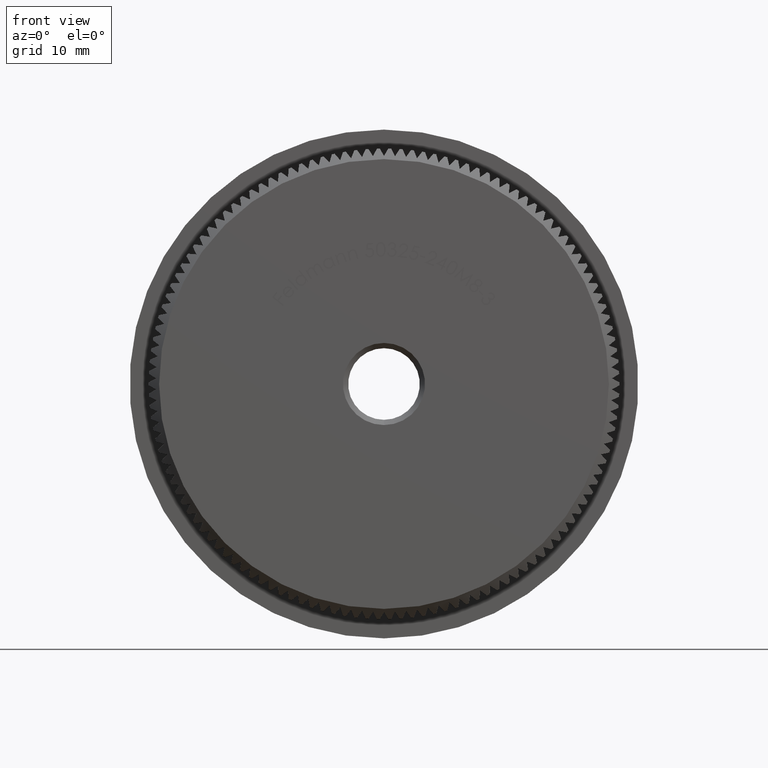
[diagram: clean part render]
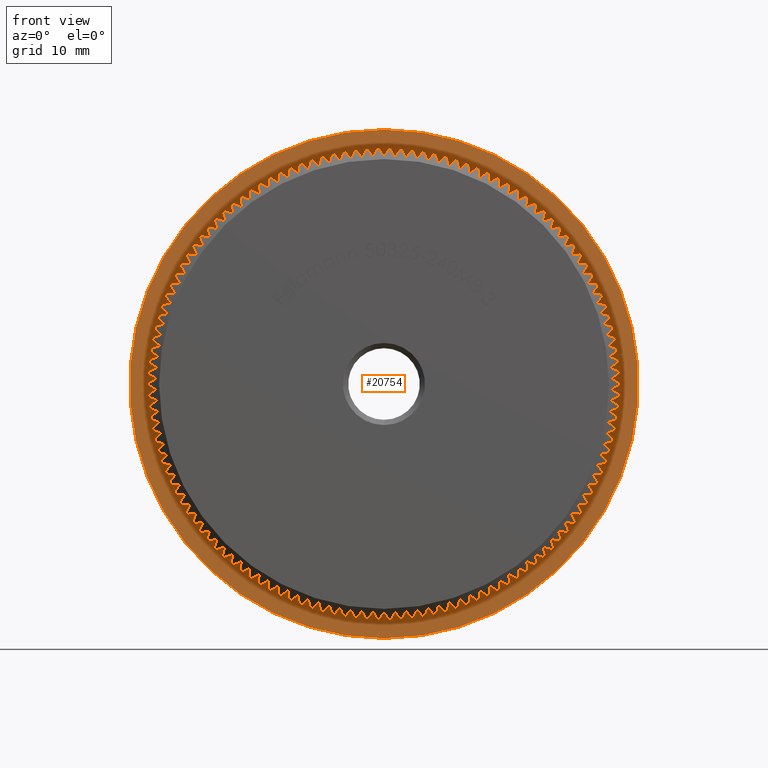
[diagram: same view with one face highlighted and labeled with its STEP entity id]
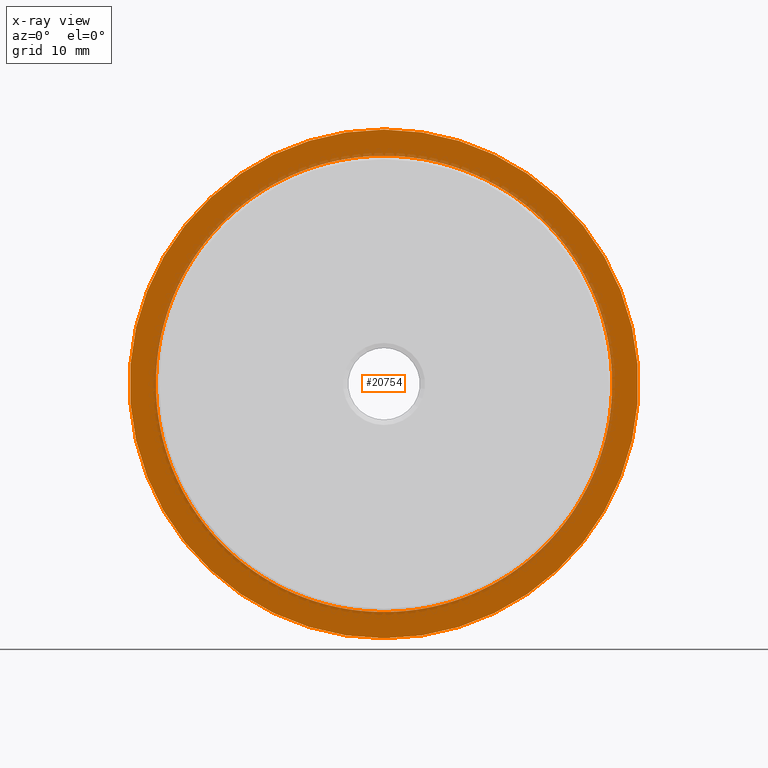
[diagram: x-ray of the same camera — body ghosted, the highlighted face saturated]
A machine part, front view. The second image highlights one B-rep face of the part: STEP entity #20754.
The next image is the same camera in x-ray: the body ghosted, the highlighted face saturated — about 9% of this face is hidden behind the body in this view.
In plain terms, the highlighted planar face has unit normal (0, -1, -0).
Its self-contained STEP definition (entity closure, byte-faithful):
#36 = DIRECTION ( 'NONE',  ( 0.0000000000000000000, 0.0000000000000000000, -1.000000000000000000 ) ) ;
#45 = DIRECTION ( 'NONE',  ( 0.0000000000000000000, 0.0000000000000000000, -1.000000000000000000 ) ) ;
#111 = CARTESIAN_POINT ( 'NONE',  ( 0.0000000000000000000, 8.000000000000001800, 0.0000000000000000000 ) ) ;
#173 = CIRCLE ( 'NONE', #3748, 21.65000000000000200 ) ;
#203 = CIRCLE ( 'NONE', #19168, 21.65000000000000200 ) ;
#232 = PLANE ( 'NONE',  #6214 ) ;
#280 = VERTEX_POINT ( 'NONE', #23847 ) ;
#415 = EDGE_CURVE ( 'NONE', #13626, #13055, #11695, .T. ) ;
#457 = EDGE_CURVE ( 'NONE', #22344, #19574, #23542, .T. ) ;
#551 = DIRECTION ( 'NONE',  ( 0.0000000000000000000, 0.0000000000000000000, -1.000000000000000000 ) ) ;
#588 = VERTEX_POINT ( 'NONE', #7283 ) ;
#620 = EDGE_CURVE ( 'NONE', #16045, #19749, #23534, .T. ) ;
#637 = ORIENTED_EDGE ( 'NONE', *, *, #7174, .F. ) ;
#661 = EDGE_CURVE ( 'NONE', #13087, #9374, #1824, .T. ) ;
#717 = CIRCLE ( 'NONE', #30117, 21.65000000000000200 ) ;
#785 = VERTEX_POINT ( 'NONE', #23808 ) ;
#787 = CARTESIAN_POINT ( 'NONE',  ( 17.81760069659777200, 7.999999999999996400, -12.29860176672936800 ) ) ;
#810 = CIRCLE ( 'NONE', #1147, 21.65000000000000200 ) ;
#812 = CARTESIAN_POINT ( 'NONE',  ( -20.24310165413919900, 7.999999999999996400, -7.677195804470983400 ) ) ;
#837 = EDGE_CURVE ( 'NONE', #11233, #7271, #26286, .T. ) ;
#838 = ORIENTED_EDGE ( 'NONE', *, *, #2311, .F. ) ;
#839 = DIRECTION ( 'NONE',  ( -0.0000000000000000000, -1.000000000000000000, -0.0000000000000000000 ) ) ;
#877 = DIRECTION ( 'NONE',  ( 0.0000000000000000000, 0.0000000000000000000, -1.000000000000000000 ) ) ;
#882 = VERTEX_POINT ( 'NONE', #8687 ) ;
#891 = CIRCLE ( 'NONE', #25825, 24.14999999999999900 ) ;
#940 = AXIS2_PLACEMENT_3D ( 'NONE', #3775, #10941, #18780 ) ;
#1058 = CARTESIAN_POINT ( 'NONE',  ( 0.0000000000000000000, 8.000000000000001800, 0.0000000000000000000 ) ) ;
#1118 = CIRCLE ( 'NONE', #19606, 21.65000000000000200 ) ;
#1142 = AXIS2_PLACEMENT_3D ( 'NONE', #15799, #13242, #25838 ) ;
#1147 = AXIS2_PLACEMENT_3D ( 'NONE', #10378, #12886, #12669 ) ;
#1250 = EDGE_CURVE ( 'NONE', #12084, #25890, #3304, .T. ) ;
#1262 = ORIENTED_EDGE ( 'NONE', *, *, #661, .F. ) ;
#1303 = DIRECTION ( 'NONE',  ( -0.0000000000000000000, -1.000000000000000000, -0.0000000000000000000 ) ) ;
#1331 = DIRECTION ( 'NONE',  ( 0.0000000000000000000, 0.0000000000000000000, -1.000000000000000000 ) ) ;
#1333 = ORIENTED_EDGE ( 'NONE', *, *, #28881, .F. ) ;
#1338 = CIRCLE ( 'NONE', #20258, 21.65000000000000200 ) ;
#1343 = CARTESIAN_POINT ( 'NONE',  ( -11.86447078422862800, 8.000000000000003600, 18.10957848792139700 ) ) ;
#1439 = EDGE_CURVE ( 'NONE', #6044, #13091, #6058, .T. ) ;
#1466 = CARTESIAN_POINT ( 'NONE',  ( 10.06125667474774100, 8.000000000000000000, -19.17012295539191800 ) ) ;
#1549 = DIRECTION ( 'NONE',  ( -0.0000000000000000000, -1.000000000000000000, -0.0000000000000000000 ) ) ;
#1560 = ORIENTED_EDGE ( 'NONE', *, *, #14539, .F. ) ;
#1579 = CARTESIAN_POINT ( 'NONE',  ( 2.089526387799408800, 7.999999999999992900, -21.54892989163708000 ) ) ;
#1651 = AXIS2_PLACEMENT_3D ( 'NONE', #3410, #26005, #6045 ) ;
#1681 = AXIS2_PLACEMENT_3D ( 'NONE', #9852, #32546, #32657 ) ;
#1715 = CARTESIAN_POINT ( 'NONE',  ( 0.0000000000000000000, 8.000000000000001800, 0.0000000000000000000 ) ) ;
#1726 = CARTESIAN_POINT ( 'NONE',  ( 0.0000000000000000000, 8.000000000000001800, 0.0000000000000000000 ) ) ;
#1728 = AXIS2_PLACEMENT_3D ( 'NONE', #27202, #17284, #4488 ) ;
#1741 = VERTEX_POINT ( 'NONE', #28374 ) ;
#1755 = CIRCLE ( 'NONE', #22779, 21.65000000000000200 ) ;
#1769 = DIRECTION ( 'NONE',  ( -0.0000000000000000000, -1.000000000000000000, -0.0000000000000000000 ) ) ;
#1783 = CARTESIAN_POINT ( 'NONE',  ( 10.97568083506400100, 8.000000000000000000, 18.66164328795320400 ) ) ;
#1796 = CARTESIAN_POINT ( 'NONE',  ( 0.0000000000000000000, 8.000000000000001800, 0.0000000000000000000 ) ) ;
#1801 = ORIENTED_EDGE ( 'NONE', *, *, #31074, .F. ) ;
#1824 = CIRCLE ( 'NONE', #23903, 21.65000000000000200 ) ;
#1882 = DIRECTION ( 'NONE',  ( 0.0000000000000000000, 0.0000000000000000000, -1.000000000000000000 ) ) ;
#1911 = EDGE_CURVE ( 'NONE', #2967, #8463, #30107, .T. ) ;
#1940 = CARTESIAN_POINT ( 'NONE',  ( 0.0000000000000000000, 8.000000000000001800, 0.0000000000000000000 ) ) ;
#1961 = AXIS2_PLACEMENT_3D ( 'NONE', #2895, #27726, #45 ) ;
#1969 = CARTESIAN_POINT ( 'NONE',  ( 19.84855102860391100, 8.000000000000003600, 8.646243234197539700 ) ) ;
#2032 = ORIENTED_EDGE ( 'NONE', *, *, #18985, .F. ) ;
#2075 = DIRECTION ( 'NONE',  ( -0.0000000000000000000, -1.000000000000000000, -0.0000000000000000000 ) ) ;
#2091 = ORIENTED_EDGE ( 'NONE', *, *, #9789, .F. ) ;
#2129 = CARTESIAN_POINT ( 'NONE',  ( -5.181184131825493600, 8.000000000000003600, -21.02089034727406200 ) ) ;
#2218 = CARTESIAN_POINT ( 'NONE',  ( 0.0000000000000000000, 8.000000000000001800, 0.0000000000000000000 ) ) ;
#2311 = EDGE_CURVE ( 'NONE', #14920, #13921, #25773, .T. ) ;
#2411 = VERTEX_POINT ( 'NONE', #6368 ) ;
#2485 = VERTEX_POINT ( 'NONE', #11337 ) ;
#2500 = CIRCLE ( 'NONE', #27833, 21.65000000000000200 ) ;
#2533 = AXIS2_PLACEMENT_3D ( 'NONE', #3418, #3629, #30959 ) ;
#2540 = EDGE_CURVE ( 'NONE', #5224, #23038, #17453, .T. ) ;
#2552 = CARTESIAN_POINT ( 'NONE',  ( 15.12277105763962300, 7.999999999999996400, -15.49271750011009100 ) ) ;
#2584 = AXIS2_PLACEMENT_3D ( 'NONE', #21636, #6627, #11912 ) ;
#2690 = CARTESIAN_POINT ( 'NONE',  ( 13.55690952670463500, 7.999999999999996400, -16.87994976546865200 ) ) ;
#2699 = VERTEX_POINT ( 'NONE', #5902 ) ;
#2718 = EDGE_CURVE ( 'NONE', #20990, #2699, #3247, .T. ) ;
#2763 = AXIS2_PLACEMENT_3D ( 'NONE', #23920, #21275, #23585 ) ;
#2796 = ORIENTED_EDGE ( 'NONE', *, *, #31021, .F. ) ;
#2876 = CIRCLE ( 'NONE', #6712, 21.65000000000000200 ) ;
#2895 = CARTESIAN_POINT ( 'NONE',  ( 0.0000000000000000000, 8.000000000000001800, 0.0000000000000000000 ) ) ;
#2967 = VERTEX_POINT ( 'NONE', #13481 ) ;
#3020 = VERTEX_POINT ( 'NONE', #1466 ) ;
#3062 = AXIS2_PLACEMENT_3D ( 'NONE', #6725, #4632, #9493 ) ;
#3089 = VERTEX_POINT ( 'NONE', #4109 ) ;
#3106 = CARTESIAN_POINT ( 'NONE',  ( 3.128187923173351600, 7.999999999999986700, 21.42281354811530400 ) ) ;
#3110 = CARTESIAN_POINT ( 'NONE',  ( 0.0000000000000000000, 8.000000000000001800, 0.0000000000000000000 ) ) ;
#3147 = CARTESIAN_POINT ( 'NONE',  ( -2.089526387799107700, 7.999999999999996400, -21.54892989163710800 ) ) ;
#3190 = DIRECTION ( 'NONE',  ( -0.0000000000000000000, -1.000000000000000000, -0.0000000000000000000 ) ) ;
#3195 = ORIENTED_EDGE ( 'NONE', *, *, #10568, .F. ) ;
#3204 = CARTESIAN_POINT ( 'NONE',  ( 0.0000000000000000000, 8.000000000000001800, 0.0000000000000000000 ) ) ;
#3235 = CIRCLE ( 'NONE', #12716, 21.65000000000000200 ) ;
#3247 = CIRCLE ( 'NONE', #32141, 21.65000000000000200 ) ;
#3266 = CIRCLE ( 'NONE', #3855, 24.14999999999999900 ) ;
#3304 = CIRCLE ( 'NONE', #14990, 21.65000000000000200 ) ;
#3310 = ORIENTED_EDGE ( 'NONE', *, *, #837, .F. ) ;
#3393 = CARTESIAN_POINT ( 'NONE',  ( 0.0000000000000000000, 8.000000000000001800, 0.0000000000000000000 ) ) ;
#3403 = CARTESIAN_POINT ( 'NONE',  ( 0.0000000000000000000, 8.000000000000001800, 0.0000000000000000000 ) ) ;
#3410 = CARTESIAN_POINT ( 'NONE',  ( 0.0000000000000000000, 8.000000000000001800, 0.0000000000000000000 ) ) ;
#3418 = CARTESIAN_POINT ( 'NONE',  ( 0.0000000000000000000, 8.000000000000001800, 0.0000000000000000000 ) ) ;
#3594 = FACE_BOUND ( 'NONE', #26050, .T. ) ;
#3606 = ORIENTED_EDGE ( 'NONE', *, *, #31861, .F. ) ;
#3629 = DIRECTION ( 'NONE',  ( -0.0000000000000000000, -1.000000000000000000, -0.0000000000000000000 ) ) ;
#3656 = EDGE_CURVE ( 'NONE', #10514, #23773, #15059, .T. ) ;
#3657 = AXIS2_PLACEMENT_3D ( 'NONE', #1058, #24646, #16277 ) ;
#3660 = DIRECTION ( 'NONE',  ( -0.0000000000000000000, -1.000000000000000000, -0.0000000000000000000 ) ) ;
#3686 = CARTESIAN_POINT ( 'NONE',  ( 10.06125667474734800, 7.999999999999996400, 19.17012295539212400 ) ) ;
#3704 = AXIS2_PLACEMENT_3D ( 'NONE', #5386, #30951, #30515 ) ;
#3719 = DIRECTION ( 'NONE',  ( -0.0000000000000000000, -1.000000000000000000, -0.0000000000000000000 ) ) ;
#3748 = AXIS2_PLACEMENT_3D ( 'NONE', #10119, #30814, #28209 ) ;
#3775 = CARTESIAN_POINT ( 'NONE',  ( 0.0000000000000000000, 8.000000000000001800, 0.0000000000000000000 ) ) ;
#3817 = EDGE_CURVE ( 'NONE', #2485, #12084, #28851, .T. ) ;
#3855 = AXIS2_PLACEMENT_3D ( 'NONE', #22001, #29490, #27164 ) ;
#3875 = DIRECTION ( 'NONE',  ( 0.0000000000000000000, 0.0000000000000000000, -1.000000000000000000 ) ) ;
#3879 = DIRECTION ( 'NONE',  ( -0.0000000000000000000, -1.000000000000000000, -0.0000000000000000000 ) ) ;
#3977 = AXIS2_PLACEMENT_3D ( 'NONE', #32423, #12467, #11805 ) ;
#3997 = CIRCLE ( 'NONE', #5345, 21.65000000000000200 ) ;
#3999 = DIRECTION ( 'NONE',  ( -0.0000000000000000000, -1.000000000000000000, -0.0000000000000000000 ) ) ;
#4049 = VERTEX_POINT ( 'NONE', #18567 ) ;
#4109 = CARTESIAN_POINT ( 'NONE',  ( 21.64367850483617400, 7.999999999999992900, 0.5231450843624923000 ) ) ;
#4150 = CARTESIAN_POINT ( 'NONE',  ( 17.81760069659751300, 8.000000000000003600, 12.29860176672974100 ) ) ;
#4154 = CIRCLE ( 'NONE', #7096, 21.65000000000000200 ) ;
#4252 = DIRECTION ( 'NONE',  ( 0.0000000000000000000, 0.0000000000000000000, -1.000000000000000000 ) ) ;
#4253 = ORIENTED_EDGE ( 'NONE', *, *, #5589, .F. ) ;
#4265 = DIRECTION ( 'NONE',  ( 0.0000000000000000000, 0.0000000000000000000, -1.000000000000000000 ) ) ;
#4316 = AXIS2_PLACEMENT_3D ( 'NONE', #19679, #32440, #14688 ) ;
#4318 = EDGE_CURVE ( 'NONE', #32354, #6266, #29249, .T. ) ;
#4374 = DIRECTION ( 'NONE',  ( 0.0000000000000000000, 0.0000000000000000000, -1.000000000000000000 ) ) ;
#4386 = VERTEX_POINT ( 'NONE', #21742 ) ;
#4393 = AXIS2_PLACEMENT_3D ( 'NONE', #13637, #23581, #8144 ) ;
#4408 = CARTESIAN_POINT ( 'NONE',  ( 0.0000000000000000000, 8.000000000000001800, 0.0000000000000000000 ) ) ;
#4469 = CIRCLE ( 'NONE', #32254, 21.65000000000000200 ) ;
#4488 = DIRECTION ( 'NONE',  ( 0.0000000000000000000, 0.0000000000000000000, -1.000000000000000000 ) ) ;
#4632 = DIRECTION ( 'NONE',  ( -0.0000000000000000000, -1.000000000000000000, -0.0000000000000000000 ) ) ;
#4681 = DIRECTION ( 'NONE',  ( 0.0000000000000000000, 0.0000000000000000000, -1.000000000000000000 ) ) ;
#4728 = ORIENTED_EDGE ( 'NONE', *, *, #28506, .F. ) ;
#4730 = ORIENTED_EDGE ( 'NONE', *, *, #23650, .F. ) ;
#4858 = EDGE_CURVE ( 'NONE', #7780, #22344, #29974, .T. ) ;
#4861 = AXIS2_PLACEMENT_3D ( 'NONE', #32154, #6802, #4374 ) ;
#4907 = EDGE_CURVE ( 'NONE', #9374, #785, #12201, .T. ) ;
#4965 = CARTESIAN_POINT ( 'NONE',  ( 0.0000000000000000000, 8.000000000000001800, 0.0000000000000000000 ) ) ;
#5000 = CARTESIAN_POINT ( 'NONE',  ( 16.54743534981745500, 8.000000000000003600, 13.96083390573828700 ) ) ;
#5224 = VERTEX_POINT ( 'NONE', #9652 ) ;
#5240 = AXIS2_PLACEMENT_3D ( 'NONE', #29929, #19483, #4681 ) ;
#5251 = EDGE_CURVE ( 'NONE', #28154, #28462, #14579, .T. ) ;
#5254 = DIRECTION ( 'NONE',  ( 0.0000000000000000000, 0.0000000000000000000, -1.000000000000000000 ) ) ;
#5277 = ORIENTED_EDGE ( 'NONE', *, *, #18835, .F. ) ;
#5280 = CARTESIAN_POINT ( 'NONE',  ( 0.0000000000000000000, 8.000000000000001800, 0.0000000000000000000 ) ) ;
#5323 = CIRCLE ( 'NONE', #19781, 21.65000000000000200 ) ;
#5345 = AXIS2_PLACEMENT_3D ( 'NONE', #10300, #22781, #30355 ) ;
#5386 = CARTESIAN_POINT ( 'NONE',  ( 0.0000000000000000000, 8.000000000000001800, 0.0000000000000000000 ) ) ;
#5422 = CARTESIAN_POINT ( 'NONE',  ( 0.0000000000000000000, 8.000000000000001800, 0.0000000000000000000 ) ) ;
#5424 = CIRCLE ( 'NONE', #7263, 21.65000000000000200 ) ;
#5444 = EDGE_CURVE ( 'NONE', #4386, #25540, #15383, .T. ) ;
#5452 = CARTESIAN_POINT ( 'NONE',  ( -17.20260676580272000, 7.999999999999996400, -13.14506829427518400 ) ) ;
#5475 = CARTESIAN_POINT ( 'NONE',  ( 0.0000000000000000000, 8.000000000000001800, 0.0000000000000000000 ) ) ;
#5497 = EDGE_CURVE ( 'NONE', #16773, #18068, #22870, .T. ) ;
#5509 = VERTEX_POINT ( 'NONE', #19395 ) ;
#5529 = ORIENTED_EDGE ( 'NONE', *, *, #23802, .F. ) ;
#5577 = AXIS2_PLACEMENT_3D ( 'NONE', #21579, #9339, #16724 ) ;
#5589 = EDGE_CURVE ( 'NONE', #19749, #11456, #6275, .T. ) ;
#5630 = CARTESIAN_POINT ( 'NONE',  ( -6.190723937331637400, 8.000000000000000000, 20.74602220021344600 ) ) ;
#5642 = EDGE_CURVE ( 'NONE', #29549, #17894, #26826, .T. ) ;
#5663 = VERTEX_POINT ( 'NONE', #21151 ) ;
#5691 = DIRECTION ( 'NONE',  ( -0.0000000000000000000, -1.000000000000000000, -0.0000000000000000000 ) ) ;
#5716 = CARTESIAN_POINT ( 'NONE',  ( 0.0000000000000000000, 8.000000000000001800, 0.0000000000000000000 ) ) ;
#5723 = CARTESIAN_POINT ( 'NONE',  ( 0.0000000000000000000, 8.000000000000001800, 0.0000000000000000000 ) ) ;
#5749 = DIRECTION ( 'NONE',  ( 0.0000000000000000000, 0.0000000000000000000, -1.000000000000000000 ) ) ;
#5751 = CARTESIAN_POINT ( 'NONE',  ( 0.0000000000000000000, 8.000000000000001800, 0.0000000000000000000 ) ) ;
#5757 = VERTEX_POINT ( 'NONE', #4150 ) ;
#5759 = CARTESIAN_POINT ( 'NONE',  ( -21.34096965217023400, 7.999999999999989300, -3.644929945163470000 ) ) ;
#5785 = ORIENTED_EDGE ( 'NONE', *, *, #14954, .F. ) ;
#5790 = EDGE_CURVE ( 'NONE', #27620, #32395, #32305, .T. ) ;
#5798 = ORIENTED_EDGE ( 'NONE', *, *, #27554, .F. ) ;
#5852 = VERTEX_POINT ( 'NONE', #30264 ) ;
#5857 = DIRECTION ( 'NONE',  ( 0.0000000000000000000, 0.0000000000000000000, -1.000000000000000000 ) ) ;
#5902 = CARTESIAN_POINT ( 'NONE',  ( -16.54743534981754700, 7.999999999999992900, -13.96083390573817900 ) ) ;
#5922 = EDGE_CURVE ( 'NONE', #27191, #31390, #32710, .T. ) ;
#6017 = AXIS2_PLACEMENT_3D ( 'NONE', #3204, #20864, #5749 ) ;
#6041 = DIRECTION ( 'NONE',  ( 0.0000000000000000000, 0.0000000000000000000, -1.000000000000000000 ) ) ;
#6044 = VERTEX_POINT ( 'NONE', #2690 ) ;
#6045 = DIRECTION ( 'NONE',  ( 0.0000000000000000000, 0.0000000000000000000, -1.000000000000000000 ) ) ;
#6046 = CARTESIAN_POINT ( 'NONE',  ( 0.0000000000000000000, 8.000000000000001800, 0.0000000000000000000 ) ) ;
#6058 = CIRCLE ( 'NONE', #7610, 21.65000000000000200 ) ;
#6074 = EDGE_CURVE ( 'NONE', #7271, #30421, #30752, .T. ) ;
#6079 = DIRECTION ( 'NONE',  ( -0.0000000000000000000, -1.000000000000000000, -0.0000000000000000000 ) ) ;
#6097 = AXIS2_PLACEMENT_3D ( 'NONE', #29446, #11571, #29217 ) ;
#6098 = CARTESIAN_POINT ( 'NONE',  ( 0.0000000000000000000, 8.000000000000001800, 0.0000000000000000000 ) ) ;
#6152 = CIRCLE ( 'NONE', #22962, 21.65000000000000200 ) ;
#6209 = AXIS2_PLACEMENT_3D ( 'NONE', #30181, #20272, #7470 ) ;
#6214 = AXIS2_PLACEMENT_3D ( 'NONE', #27801, #12778, #20417 ) ;
#6231 = VERTEX_POINT ( 'NONE', #1969 ) ;
#6261 = EDGE_CURVE ( 'NONE', #9716, #13087, #29185, .T. ) ;
#6264 = DIRECTION ( 'NONE',  ( -0.0000000000000000000, -1.000000000000000000, -0.0000000000000000000 ) ) ;
#6266 = VERTEX_POINT ( 'NONE', #12191 ) ;
#6275 = CIRCLE ( 'NONE', #30687, 21.65000000000000200 ) ;
#6283 = ORIENTED_EDGE ( 'NONE', *, *, #18626, .F. ) ;
#6311 = CARTESIAN_POINT ( 'NONE',  ( -17.20260676580280900, 7.999999999999996400, 13.14506829427506500 ) ) ;
#6315 = CIRCLE ( 'NONE', #1142, 21.65000000000000200 ) ;
#6344 = CARTESIAN_POINT ( 'NONE',  ( 0.0000000000000000000, 8.000000000000001800, 0.0000000000000000000 ) ) ;
#6368 = CARTESIAN_POINT ( 'NONE',  ( 20.88955572988783200, 7.999999999999989300, 5.687614737999642700 ) ) ;
#6422 = DIRECTION ( 'NONE',  ( -0.0000000000000000000, -1.000000000000000000, -0.0000000000000000000 ) ) ;
#6435 = CARTESIAN_POINT ( 'NONE',  ( 2.089526387798957600, 8.000000000000000000, 21.54892989163712300 ) ) ;
#6441 = DIRECTION ( 'NONE',  ( 0.0000000000000000000, 0.0000000000000000000, -1.000000000000000000 ) ) ;
#6470 = AXIS2_PLACEMENT_3D ( 'NONE', #30048, #9764, #29825 ) ;
#6473 = AXIS2_PLACEMENT_3D ( 'NONE', #32281, #17407, #19634 ) ;
#6522 = CIRCLE ( 'NONE', #6473, 21.65000000000000200 ) ;
#6546 = AXIS2_PLACEMENT_3D ( 'NONE', #19151, #14148, #29169 ) ;
#6577 = CIRCLE ( 'NONE', #1681, 21.65000000000000200 ) ;
#6588 = ORIENTED_EDGE ( 'NONE', *, *, #20183, .F. ) ;
#6593 = DIRECTION ( 'NONE',  ( -0.0000000000000000000, -1.000000000000000000, -0.0000000000000000000 ) ) ;
#6595 = EDGE_CURVE ( 'NONE', #785, #5224, #6315, .T. ) ;
#6627 = DIRECTION ( 'NONE',  ( -0.0000000000000000000, -1.000000000000000000, -0.0000000000000000000 ) ) ;
#6677 = DIRECTION ( 'NONE',  ( -0.0000000000000000000, -1.000000000000000000, -0.0000000000000000000 ) ) ;
#6686 = EDGE_CURVE ( 'NONE', #20764, #7780, #16568, .T. ) ;
#6712 = AXIS2_PLACEMENT_3D ( 'NONE', #27888, #12757, #30409 ) ;
#6725 = CARTESIAN_POINT ( 'NONE',  ( 0.0000000000000000000, 8.000000000000001800, 0.0000000000000000000 ) ) ;
#6733 = CARTESIAN_POINT ( 'NONE',  ( -1.045984666727080500, 7.999999999999989300, -21.62471771091988500 ) ) ;
#6751 = DIRECTION ( 'NONE',  ( 0.0000000000000000000, 0.0000000000000000000, -1.000000000000000000 ) ) ;
#6802 = DIRECTION ( 'NONE',  ( -0.0000000000000000000, -1.000000000000000000, -0.0000000000000000000 ) ) ;
#6833 = DIRECTION ( 'NONE',  ( -0.0000000000000000000, -1.000000000000000000, -0.0000000000000000000 ) ) ;
#6846 = DIRECTION ( 'NONE',  ( -0.0000000000000000000, -1.000000000000000000, -0.0000000000000000000 ) ) ;
#6902 = CIRCLE ( 'NONE', #11538, 21.65000000000000200 ) ;
#6910 = CARTESIAN_POINT ( 'NONE',  ( 0.0000000000000000000, 8.000000000000001800, 0.0000000000000000000 ) ) ;
#6922 = AXIS2_PLACEMENT_3D ( 'NONE', #16503, #31813, #19161 ) ;
#6948 = DIRECTION ( 'NONE',  ( 0.0000000000000000000, 0.0000000000000000000, -1.000000000000000000 ) ) ;
#6982 = VERTEX_POINT ( 'NONE', #32619 ) ;
#7004 = DIRECTION ( 'NONE',  ( 0.0000000000000000000, 0.0000000000000000000, -1.000000000000000000 ) ) ;
#7011 = DIRECTION ( 'NONE',  ( 0.0000000000000000000, 0.0000000000000000000, -1.000000000000000000 ) ) ;
#7050 = ORIENTED_EDGE ( 'NONE', *, *, #30932, .F. ) ;
#7070 = CARTESIAN_POINT ( 'NONE',  ( -21.64367850483618100, 7.999999999999986700, -0.5231450843623413100 ) ) ;
#7096 = AXIS2_PLACEMENT_3D ( 'NONE', #8492, #26139, #13556 ) ;
#7105 = CARTESIAN_POINT ( 'NONE',  ( 21.13994935665369100, 8.000000000000000000, 4.671727860023238100 ) ) ;
#7174 = EDGE_CURVE ( 'NONE', #6231, #26965, #11027, .T. ) ;
#7181 = DIRECTION ( 'NONE',  ( 0.0000000000000000000, 0.0000000000000000000, -1.000000000000000000 ) ) ;
#7232 = EDGE_CURVE ( 'NONE', #27148, #2411, #20119, .T. ) ;
#7263 = AXIS2_PLACEMENT_3D ( 'NONE', #29144, #13807, #31456 ) ;
#7271 = VERTEX_POINT ( 'NONE', #10837 ) ;
#7283 = CARTESIAN_POINT ( 'NONE',  ( 20.24310165413914600, 8.000000000000000000, 7.677195804471129900 ) ) ;
#7317 = AXIS2_PLACEMENT_3D ( 'NONE', #10689, #13194, #28334 ) ;
#7325 = VERTEX_POINT ( 'NONE', #16126 ) ;
#7341 = DIRECTION ( 'NONE',  ( 0.0000000000000000000, 0.0000000000000000000, -1.000000000000000000 ) ) ;
#7377 = EDGE_CURVE ( 'NONE', #280, #27191, #18510, .T. ) ;
#7399 = DIRECTION ( 'NONE',  ( -0.0000000000000000000, -1.000000000000000000, -0.0000000000000000000 ) ) ;
#7401 = DIRECTION ( 'NONE',  ( -0.0000000000000000000, -1.000000000000000000, -0.0000000000000000000 ) ) ;
#7404 = CARTESIAN_POINT ( 'NONE',  ( -14.35660555091313000, 7.999999999999996400, -16.20525769790441800 ) ) ;
#7421 = EDGE_CURVE ( 'NONE', #9421, #15011, #20089, .T. ) ;
#7470 = DIRECTION ( 'NONE',  ( 0.0000000000000000000, 0.0000000000000000000, -1.000000000000000000 ) ) ;
#7503 = CARTESIAN_POINT ( 'NONE',  ( 2.957522019940857900E-015, 8.000000000000000000, 24.14999999999999900 ) ) ;
#7504 = AXIS2_PLACEMENT_3D ( 'NONE', #19367, #14266, #24551 ) ;
#7530 = DIRECTION ( 'NONE',  ( -0.0000000000000000000, -1.000000000000000000, -0.0000000000000000000 ) ) ;
#7552 = VERTEX_POINT ( 'NONE', #24858 ) ;
#7553 = AXIS2_PLACEMENT_3D ( 'NONE', #8451, #13400, #31046 ) ;
#7558 = EDGE_CURVE ( 'NONE', #20600, #26561, #27574, .T. ) ;
#7610 = AXIS2_PLACEMENT_3D ( 'NONE', #15647, #17965, #13758 ) ;
#7619 = DIRECTION ( 'NONE',  ( -0.0000000000000000000, -1.000000000000000000, -0.0000000000000000000 ) ) ;
#7621 = EDGE_CURVE ( 'NONE', #25751, #26264, #30723, .T. ) ;
#7636 = CARTESIAN_POINT ( 'NONE',  ( -10.06125667474747400, 7.999999999999996400, -19.17012295539206000 ) ) ;
#7658 = EDGE_CURVE ( 'NONE', #23301, #4049, #23255, .T. ) ;
#7666 = AXIS2_PLACEMENT_3D ( 'NONE', #8665, #3719, #23567 ) ;
#7684 = ORIENTED_EDGE ( 'NONE', *, *, #16846, .F. ) ;
#7717 = VERTEX_POINT ( 'NONE', #6311 ) ;
#7728 = CARTESIAN_POINT ( 'NONE',  ( 14.35660555091335600, 7.999999999999996400, -16.20525769790421900 ) ) ;
#7763 = EDGE_CURVE ( 'NONE', #10062, #17458, #26797, .T. ) ;
#7780 = VERTEX_POINT ( 'NONE', #16256 ) ;
#7796 = EDGE_CURVE ( 'NONE', #32476, #3089, #16914, .T. ) ;
#7811 = ORIENTED_EDGE ( 'NONE', *, *, #30545, .F. ) ;
#7865 = CARTESIAN_POINT ( 'NONE',  ( -8.164103322552156400, 8.000000000000000000, 20.05168114993585600 ) ) ;
#7899 = EDGE_CURVE ( 'NONE', #12439, #11233, #22428, .T. ) ;
#7935 = AXIS2_PLACEMENT_3D ( 'NONE', #14470, #11930, #13596 ) ;
#8049 = AXIS2_PLACEMENT_3D ( 'NONE', #27205, #22583, #32479 ) ;
#8054 = EDGE_CURVE ( 'NONE', #3089, #2967, #30294, .T. ) ;
#8083 = DIRECTION ( 'NONE',  ( 0.0000000000000000000, 0.0000000000000000000, -1.000000000000000000 ) ) ;
#8144 = DIRECTION ( 'NONE',  ( 0.0000000000000000000, 0.0000000000000000000, -1.000000000000000000 ) ) ;
#8159 = CARTESIAN_POINT ( 'NONE',  ( 0.0000000000000000000, 8.000000000000001800, 0.0000000000000000000 ) ) ;
#8188 = EDGE_CURVE ( 'NONE', #11941, #16045, #14112, .T. ) ;
#8205 = CARTESIAN_POINT ( 'NONE',  ( -20.59037357779005000, 7.999999999999996400, -6.690217928217697900 ) ) ;
#8215 = ORIENTED_EDGE ( 'NONE', *, *, #32329, .F. ) ;
#8248 = ORIENTED_EDGE ( 'NONE', *, *, #9260, .F. ) ;
#8249 = CARTESIAN_POINT ( 'NONE',  ( 21.34096965217028000, 7.999999999999996400, -3.644929945163171600 ) ) ;
#8293 = DIRECTION ( 'NONE',  ( -0.0000000000000000000, -1.000000000000000000, -0.0000000000000000000 ) ) ;
#8321 = EDGE_CURVE ( 'NONE', #1741, #9547, #717, .T. ) ;
#8384 = EDGE_CURVE ( 'NONE', #19574, #10127, #25590, .T. ) ;
#8451 = CARTESIAN_POINT ( 'NONE',  ( 0.0000000000000000000, 8.000000000000001800, 0.0000000000000000000 ) ) ;
#8456 = DIRECTION ( 'NONE',  ( 0.0000000000000000000, 0.0000000000000000000, -1.000000000000000000 ) ) ;
#8463 = VERTEX_POINT ( 'NONE', #27327 ) ;
#8469 = CARTESIAN_POINT ( 'NONE',  ( 0.0000000000000000000, 8.000000000000001800, 0.0000000000000000000 ) ) ;
#8492 = CARTESIAN_POINT ( 'NONE',  ( 0.0000000000000000000, 8.000000000000001800, 0.0000000000000000000 ) ) ;
#8539 = DIRECTION ( 'NONE',  ( -0.0000000000000000000, -1.000000000000000000, -0.0000000000000000000 ) ) ;
#8542 = ORIENTED_EDGE ( 'NONE', *, *, #16375, .F. ) ;
#8548 = DIRECTION ( 'NONE',  ( -0.0000000000000000000, -1.000000000000000000, -0.0000000000000000000 ) ) ;
#8592 = AXIS2_PLACEMENT_3D ( 'NONE', #16041, #26284, #28389 ) ;
#8602 = DIRECTION ( 'NONE',  ( 0.0000000000000000000, 0.0000000000000000000, -1.000000000000000000 ) ) ;
#8621 = DIRECTION ( 'NONE',  ( 0.0000000000000000000, 0.0000000000000000000, -1.000000000000000000 ) ) ;
#8634 = EDGE_CURVE ( 'NONE', #31390, #5852, #9768, .T. ) ;
#8633 = ORIENTED_EDGE ( 'NONE', *, *, #8821, .F. ) ;
#8665 = CARTESIAN_POINT ( 'NONE',  ( 0.0000000000000000000, 8.000000000000001800, 0.0000000000000000000 ) ) ;
#8674 = DIRECTION ( 'NONE',  ( 0.0000000000000000000, 0.0000000000000000000, -1.000000000000000000 ) ) ;
#8687 = CARTESIAN_POINT ( 'NONE',  ( -10.97568083506412300, 7.999999999999992900, -18.66164328795313700 ) ) ;
#8695 = CARTESIAN_POINT ( 'NONE',  ( 6.190723937331784800, 7.999999999999996400, -20.74602220021340300 ) ) ;
#8716 = EDGE_CURVE ( 'NONE', #11456, #7325, #19656, .T. ) ;
#8737 = CIRCLE ( 'NONE', #3657, 21.65000000000000200 ) ;
#8821 = EDGE_CURVE ( 'NONE', #24743, #6044, #9390, .T. ) ;
#8887 = ORIENTED_EDGE ( 'NONE', *, *, #10217, .F. ) ;
#8950 = DIRECTION ( 'NONE',  ( 0.0000000000000000000, 0.0000000000000000000, -1.000000000000000000 ) ) ;
#9043 = CARTESIAN_POINT ( 'NONE',  ( 0.0000000000000000000, 8.000000000000001800, 0.0000000000000000000 ) ) ;
#9076 = ORIENTED_EDGE ( 'NONE', *, *, #28644, .F. ) ;
#9079 = VERTEX_POINT ( 'NONE', #15267 ) ;
#9164 = CARTESIAN_POINT ( 'NONE',  ( 0.0000000000000000000, 8.000000000000000000, 0.0000000000000000000 ) ) ;
#9167 = VERTEX_POINT ( 'NONE', #8205 ) ;
#9171 = CARTESIAN_POINT ( 'NONE',  ( -7.185805020232655800, 8.000000000000000000, 20.42270075703013500 ) ) ;
#9225 = ORIENTED_EDGE ( 'NONE', *, *, #18295, .F. ) ;
#9232 = AXIS2_PLACEMENT_3D ( 'NONE', #1796, #32098, #12572 ) ;
#9260 = EDGE_CURVE ( 'NONE', #12352, #25324, #5424, .T. ) ;
#9266 = ORIENTED_EDGE ( 'NONE', *, *, #28589, .F. ) ;
#9274 = CARTESIAN_POINT ( 'NONE',  ( 0.0000000000000000000, 8.000000000000001800, 0.0000000000000000000 ) ) ;
#9339 = DIRECTION ( 'NONE',  ( -0.0000000000000000000, -1.000000000000000000, -0.0000000000000000000 ) ) ;
#9348 = CARTESIAN_POINT ( 'NONE',  ( 3.128187923173800600, 7.999999999999986700, -21.42281354811524000 ) ) ;
#9365 = CARTESIAN_POINT ( 'NONE',  ( 18.39098079538079500, 8.000000000000000000, 11.42341128489799700 ) ) ;
#9374 = VERTEX_POINT ( 'NONE', #14342 ) ;
#9390 = CIRCLE ( 'NONE', #5577, 21.65000000000000200 ) ;
#9421 = VERTEX_POINT ( 'NONE', #1579 ) ;
#9441 = CARTESIAN_POINT ( 'NONE',  ( 0.0000000000000000000, 8.000000000000001800, 0.0000000000000000000 ) ) ;
#9464 = DIRECTION ( 'NONE',  ( 0.0000000000000000000, 0.0000000000000000000, -1.000000000000000000 ) ) ;
#9472 = CARTESIAN_POINT ( 'NONE',  ( 0.0000000000000000000, 8.000000000000001800, 0.0000000000000000000 ) ) ;
#9493 = DIRECTION ( 'NONE',  ( 0.0000000000000000000, 0.0000000000000000000, -1.000000000000000000 ) ) ;
#9547 = VERTEX_POINT ( 'NONE', #12993 ) ;
#9600 = CIRCLE ( 'NONE', #4393, 21.65000000000000200 ) ;
#9652 = CARTESIAN_POINT ( 'NONE',  ( 4.159543430707502800, 7.999999999999986700, 21.24666323091836200 ) ) ;
#9716 = VERTEX_POINT ( 'NONE', #11845 ) ;
#9728 = CARTESIAN_POINT ( 'NONE',  ( 0.0000000000000000000, 8.000000000000001800, 0.0000000000000000000 ) ) ;
#9764 = DIRECTION ( 'NONE',  ( -0.0000000000000000000, -1.000000000000000000, -0.0000000000000000000 ) ) ;
#9768 = CIRCLE ( 'NONE', #18482, 21.65000000000000200 ) ;
#9789 = EDGE_CURVE ( 'NONE', #16736, #12439, #17642, .T. ) ;
#9823 = DIRECTION ( 'NONE',  ( -0.0000000000000000000, -1.000000000000000000, -0.0000000000000000000 ) ) ;
#9824 = AXIS2_PLACEMENT_3D ( 'NONE', #25937, #25719, #13129 ) ;
#9852 = CARTESIAN_POINT ( 'NONE',  ( 0.0000000000000000000, 8.000000000000001800, 0.0000000000000000000 ) ) ;
#9908 = ORIENTED_EDGE ( 'NONE', *, *, #22700, .F. ) ;
#9924 = CARTESIAN_POINT ( 'NONE',  ( 0.0000000000000000000, 8.000000000000001800, 0.0000000000000000000 ) ) ;
#9957 = ORIENTED_EDGE ( 'NONE', *, *, #30551, .F. ) ;
#9992 = ORIENTED_EDGE ( 'NONE', *, *, #3656, .F. ) ;
#10005 = CIRCLE ( 'NONE', #29585, 21.65000000000000200 ) ;
#10007 = CIRCLE ( 'NONE', #17685, 21.65000000000000200 ) ;
#10010 = CARTESIAN_POINT ( 'NONE',  ( 18.92140790636399600, 7.999999999999983100, 10.52154089670265200 ) ) ;
#10023 = AXIS2_PLACEMENT_3D ( 'NONE', #14779, #9823, #27688 ) ;
#10027 = ORIENTED_EDGE ( 'NONE', *, *, #22017, .F. ) ;
#10040 = CARTESIAN_POINT ( 'NONE',  ( 0.0000000000000000000, 8.000000000000001800, 0.0000000000000000000 ) ) ;
#10062 = VERTEX_POINT ( 'NONE', #20210 ) ;
#10117 = VERTEX_POINT ( 'NONE', #2552 ) ;
#10119 = CARTESIAN_POINT ( 'NONE',  ( 0.0000000000000000000, 8.000000000000001800, 0.0000000000000000000 ) ) ;
#10124 = VERTEX_POINT ( 'NONE', #7636 ) ;
#10127 = VERTEX_POINT ( 'NONE', #2129 ) ;
#10166 = CIRCLE ( 'NONE', #31594, 21.65000000000000200 ) ;
#10192 = CARTESIAN_POINT ( 'NONE',  ( -6.190723937331495300, 7.999999999999996400, -20.74602220021349200 ) ) ;
#10217 = EDGE_CURVE ( 'NONE', #28462, #24615, #13256, .T. ) ;
#10259 = DIRECTION ( 'NONE',  ( 0.0000000000000000000, 0.0000000000000000000, -1.000000000000000000 ) ) ;
#10300 = CARTESIAN_POINT ( 'NONE',  ( 0.0000000000000000000, 8.000000000000001800, 0.0000000000000000000 ) ) ;
#10336 = CIRCLE ( 'NONE', #16976, 21.65000000000000200 ) ;
#10378 = CARTESIAN_POINT ( 'NONE',  ( 0.0000000000000000000, 8.000000000000001800, 0.0000000000000000000 ) ) ;
#10392 = CIRCLE ( 'NONE', #6097, 21.65000000000000200 ) ;
#10420 = AXIS2_PLACEMENT_3D ( 'NONE', #25913, #3190, #28128 ) ;
#10465 = CIRCLE ( 'NONE', #29906, 21.65000000000000200 ) ;
#10477 = DIRECTION ( 'NONE',  ( -0.0000000000000000000, -1.000000000000000000, -0.0000000000000000000 ) ) ;
#10514 = VERTEX_POINT ( 'NONE', #18407 ) ;
#10568 = EDGE_CURVE ( 'NONE', #22406, #26075, #31394, .T. ) ;
#10640 = ORIENTED_EDGE ( 'NONE', *, *, #457, .F. ) ;
#10671 = ORIENTED_EDGE ( 'NONE', *, *, #26889, .F. ) ;
#10689 = CARTESIAN_POINT ( 'NONE',  ( 0.0000000000000000000, 8.000000000000001800, 0.0000000000000000000 ) ) ;
#10697 = DIRECTION ( 'NONE',  ( -0.0000000000000000000, -1.000000000000000000, -0.0000000000000000000 ) ) ;
#10708 = VERTEX_POINT ( 'NONE', #19377 ) ;
#10833 = CIRCLE ( 'NONE', #30019, 21.65000000000000200 ) ;
#10837 = CARTESIAN_POINT ( 'NONE',  ( -19.84855102860403900, 7.999999999999983100, 8.646243234197262600 ) ) ;
#10852 = ORIENTED_EDGE ( 'NONE', *, *, #15025, .F. ) ;
#10882 = ORIENTED_EDGE ( 'NONE', *, *, #30499, .F. ) ;
#10902 = AXIS2_PLACEMENT_3D ( 'NONE', #6344, #31582, #26430 ) ;
#10941 = DIRECTION ( 'NONE',  ( -0.0000000000000000000, -1.000000000000000000, -0.0000000000000000000 ) ) ;
#11027 = CIRCLE ( 'NONE', #28633, 21.65000000000000200 ) ;
#11150 = EDGE_CURVE ( 'NONE', #9547, #20636, #30193, .T. ) ;
#11222 = DIRECTION ( 'NONE',  ( 0.0000000000000000000, 0.0000000000000000000, -1.000000000000000000 ) ) ;
#11233 = VERTEX_POINT ( 'NONE', #17013 ) ;
#11281 = AXIS2_PLACEMENT_3D ( 'NONE', #26028, #16211, #877 ) ;
#11328 = CIRCLE ( 'NONE', #6922, 21.65000000000000200 ) ;
#11337 = CARTESIAN_POINT ( 'NONE',  ( 4.159543430707946900, 7.999999999999996400, -21.24666323091827300 ) ) ;
#11406 = VERTEX_POINT ( 'NONE', #787 ) ;
#11448 = DIRECTION ( 'NONE',  ( 0.0000000000000000000, 0.0000000000000000000, -1.000000000000000000 ) ) ;
#11456 = VERTEX_POINT ( 'NONE', #26147 ) ;
#11463 = CIRCLE ( 'NONE', #11281, 21.65000000000000200 ) ;
#11501 = DIRECTION ( 'NONE',  ( -0.0000000000000000000, -1.000000000000000000, -0.0000000000000000000 ) ) ;
#11516 = EDGE_CURVE ( 'NONE', #7552, #21208, #5323, .T. ) ;
#11538 = AXIS2_PLACEMENT_3D ( 'NONE', #5422, #23071, #5857 ) ;
#11551 = CARTESIAN_POINT ( 'NONE',  ( 0.0000000000000000000, 8.000000000000001800, 0.0000000000000000000 ) ) ;
#11569 = EDGE_CURVE ( 'NONE', #24316, #6982, #203, .T. ) ;
#11571 = DIRECTION ( 'NONE',  ( -0.0000000000000000000, -1.000000000000000000, -0.0000000000000000000 ) ) ;
#11694 = VERTEX_POINT ( 'NONE', #31637 ) ;
#11695 = CIRCLE ( 'NONE', #18399, 21.65000000000000200 ) ;
#11704 = DIRECTION ( 'NONE',  ( 0.0000000000000000000, 0.0000000000000000000, -1.000000000000000000 ) ) ;
#11742 = DIRECTION ( 'NONE',  ( -0.0000000000000000000, -1.000000000000000000, -0.0000000000000000000 ) ) ;
#11779 = AXIS2_PLACEMENT_3D ( 'NONE', #16562, #18999, #8950 ) ;
#11782 = AXIS2_PLACEMENT_3D ( 'NONE', #14316, #6833, #27017 ) ;
#11805 = DIRECTION ( 'NONE',  ( 0.0000000000000000000, 0.0000000000000000000, -1.000000000000000000 ) ) ;
#11845 = CARTESIAN_POINT ( 'NONE',  ( 8.164103322551879300, 8.000000000000003600, 20.05168114993597000 ) ) ;
#11850 = EDGE_CURVE ( 'NONE', #5509, #3020, #10465, .T. ) ;
#11884 = CARTESIAN_POINT ( 'NONE',  ( -4.159543430707796800, 7.999999999999989300, 21.24666323091830500 ) ) ;
#11892 = CIRCLE ( 'NONE', #23626, 21.65000000000000200 ) ;
#11893 = EDGE_CURVE ( 'NONE', #27089, #882, #15580, .T. ) ;
#11912 = DIRECTION ( 'NONE',  ( 0.0000000000000000000, 0.0000000000000000000, -1.000000000000000000 ) ) ;
#11930 = DIRECTION ( 'NONE',  ( -0.0000000000000000000, -1.000000000000000000, -0.0000000000000000000 ) ) ;
#11932 = AXIS2_PLACEMENT_3D ( 'NONE', #13161, #28515, #23226 ) ;
#11941 = VERTEX_POINT ( 'NONE', #18373 ) ;
#12081 = AXIS2_PLACEMENT_3D ( 'NONE', #26997, #6593, #9464 ) ;
#12084 = VERTEX_POINT ( 'NONE', #13813 ) ;
#12110 = CARTESIAN_POINT ( 'NONE',  ( 0.0000000000000000000, 8.000000000000001800, 0.0000000000000000000 ) ) ;
#12139 = CARTESIAN_POINT ( 'NONE',  ( -10.97568083506425500, 8.000000000000000000, 18.66164328795305500 ) ) ;
#12154 = AXIS2_PLACEMENT_3D ( 'NONE', #9472, #14190, #16752 ) ;
#12163 = CIRCLE ( 'NONE', #26504, 21.65000000000000200 ) ;
#12166 = CARTESIAN_POINT ( 'NONE',  ( 0.0000000000000000000, 8.000000000000001800, 0.0000000000000000000 ) ) ;
#12170 = ORIENTED_EDGE ( 'NONE', *, *, #31599, .F. ) ;
#12191 = CARTESIAN_POINT ( 'NONE',  ( -2.089526387799256900, 7.999999999999996400, 21.54892989163709400 ) ) ;
#12199 = CARTESIAN_POINT ( 'NONE',  ( -15.85361663184172300, 7.999999999999996400, -14.74399334273424200 ) ) ;
#12201 = CIRCLE ( 'NONE', #15930, 21.65000000000000200 ) ;
#12218 = CARTESIAN_POINT ( 'NONE',  ( 1.045984666726928800, 8.000000000000000000, 21.62471771091988900 ) ) ;
#12237 = VERTEX_POINT ( 'NONE', #29747 ) ;
#12345 = ORIENTED_EDGE ( 'NONE', *, *, #11893, .F. ) ;
#12352 = VERTEX_POINT ( 'NONE', #27764 ) ;
#12404 = AXIS2_PLACEMENT_3D ( 'NONE', #9728, #30006, #14560 ) ;
#12421 = EDGE_CURVE ( 'NONE', #23328, #32354, #173, .T. ) ;
#12424 = ORIENTED_EDGE ( 'NONE', *, *, #6595, .F. ) ;
#12439 = VERTEX_POINT ( 'NONE', #28418 ) ;
#12467 = DIRECTION ( 'NONE',  ( -0.0000000000000000000, -1.000000000000000000, -0.0000000000000000000 ) ) ;
#12487 = CARTESIAN_POINT ( 'NONE',  ( 0.0000000000000000000, 8.000000000000001800, 0.0000000000000000000 ) ) ;
#12521 = AXIS2_PLACEMENT_3D ( 'NONE', #3110, #8293, #20552 ) ;
#12553 = DIRECTION ( 'NONE',  ( -0.0000000000000000000, -1.000000000000000000, -0.0000000000000000000 ) ) ;
#12557 = CARTESIAN_POINT ( 'NONE',  ( 0.0000000000000000000, 8.000000000000001800, 0.0000000000000000000 ) ) ;
#12572 = DIRECTION ( 'NONE',  ( 0.0000000000000000000, 0.0000000000000000000, -1.000000000000000000 ) ) ;
#12585 = DIRECTION ( 'NONE',  ( 0.0000000000000000000, 0.0000000000000000000, -1.000000000000000000 ) ) ;
#12669 = DIRECTION ( 'NONE',  ( 0.0000000000000000000, 0.0000000000000000000, -1.000000000000000000 ) ) ;
#12716 = AXIS2_PLACEMENT_3D ( 'NONE', #6910, #16523, #26986 ) ;
#12755 = AXIS2_PLACEMENT_3D ( 'NONE', #15880, #26235, #14512 ) ;
#12757 = DIRECTION ( 'NONE',  ( -0.0000000000000000000, -1.000000000000000000, -0.0000000000000000000 ) ) ;
#12778 = DIRECTION ( 'NONE',  ( 0.0000000000000000000, -1.000000000000000000, -0.0000000000000000000 ) ) ;
#12885 = ORIENTED_EDGE ( 'NONE', *, *, #24575, .F. ) ;
#12886 = DIRECTION ( 'NONE',  ( -0.0000000000000000000, -1.000000000000000000, -0.0000000000000000000 ) ) ;
#12928 = CIRCLE ( 'NONE', #31166, 21.65000000000000200 ) ;
#12993 = CARTESIAN_POINT ( 'NONE',  ( -21.64367850483618100, 7.999999999999996400, 0.5231450843621899800 ) ) ;
#13021 = VERTEX_POINT ( 'NONE', #26717 ) ;
#13055 = VERTEX_POINT ( 'NONE', #27142 ) ;
#13061 = CARTESIAN_POINT ( 'NONE',  ( -21.13994935665372700, 7.999999999999996400, -4.671727860023085400 ) ) ;
#13087 = VERTEX_POINT ( 'NONE', #21974 ) ;
#13091 = VERTEX_POINT ( 'NONE', #7728 ) ;
#13101 = CARTESIAN_POINT ( 'NONE',  ( 0.0000000000000000000, 8.000000000000001800, 0.0000000000000000000 ) ) ;
#13129 = DIRECTION ( 'NONE',  ( 0.0000000000000000000, 0.0000000000000000000, -1.000000000000000000 ) ) ;
#13137 = DIRECTION ( 'NONE',  ( -0.0000000000000000000, -1.000000000000000000, -0.0000000000000000000 ) ) ;
#13161 = CARTESIAN_POINT ( 'NONE',  ( 0.0000000000000000000, 8.000000000000001800, 0.0000000000000000000 ) ) ;
#13170 = CARTESIAN_POINT ( 'NONE',  ( 20.88955572988794500, 8.000000000000003600, -5.687614737999203900 ) ) ;
#13177 = DIRECTION ( 'NONE',  ( 0.0000000000000000000, 0.0000000000000000000, -1.000000000000000000 ) ) ;
#13194 = DIRECTION ( 'NONE',  ( -0.0000000000000000000, -1.000000000000000000, -0.0000000000000000000 ) ) ;
#13197 = EDGE_CURVE ( 'NONE', #25199, #15859, #28689, .T. ) ;
#13205 = ORIENTED_EDGE ( 'NONE', *, *, #7377, .F. ) ;
#13242 = DIRECTION ( 'NONE',  ( -0.0000000000000000000, -1.000000000000000000, -0.0000000000000000000 ) ) ;
#13256 = CIRCLE ( 'NONE', #22743, 21.65000000000000200 ) ;
#13270 = CARTESIAN_POINT ( 'NONE',  ( 0.0000000000000000000, 8.000000000000001800, 0.0000000000000000000 ) ) ;
#13304 = ORIENTED_EDGE ( 'NONE', *, *, #29204, .F. ) ;
#13310 = CIRCLE ( 'NONE', #27161, 21.65000000000000200 ) ;
#13331 = DIRECTION ( 'NONE',  ( 0.0000000000000000000, 0.0000000000000000000, -1.000000000000000000 ) ) ;
#13372 = CIRCLE ( 'NONE', #10902, 21.65000000000000200 ) ;
#13378 = DIRECTION ( 'NONE',  ( 0.0000000000000000000, 0.0000000000000000000, -1.000000000000000000 ) ) ;
#13381 = EDGE_CURVE ( 'NONE', #18829, #12352, #31417, .T. ) ;
#13400 = DIRECTION ( 'NONE',  ( -0.0000000000000000000, -1.000000000000000000, -0.0000000000000000000 ) ) ;
#13481 = CARTESIAN_POINT ( 'NONE',  ( 21.59312869082077000, 8.000000000000000000, 1.568213423502385700 ) ) ;
#13522 = DIRECTION ( 'NONE',  ( -0.0000000000000000000, -1.000000000000000000, -0.0000000000000000000 ) ) ;
#13556 = DIRECTION ( 'NONE',  ( 0.0000000000000000000, 0.0000000000000000000, -1.000000000000000000 ) ) ;
#13596 = DIRECTION ( 'NONE',  ( 0.0000000000000000000, 0.0000000000000000000, -1.000000000000000000 ) ) ;
#13626 = VERTEX_POINT ( 'NONE', #17682 ) ;
#13637 = CARTESIAN_POINT ( 'NONE',  ( 0.0000000000000000000, 8.000000000000001800, 0.0000000000000000000 ) ) ;
#13641 = EDGE_CURVE ( 'NONE', #5757, #10062, #25146, .T. ) ;
#13664 = DIRECTION ( 'NONE',  ( -0.0000000000000000000, -1.000000000000000000, -0.0000000000000000000 ) ) ;
#13670 = DIRECTION ( 'NONE',  ( 0.0000000000000000000, 0.0000000000000000000, -1.000000000000000000 ) ) ;
#13679 = VERTEX_POINT ( 'NONE', #30141 ) ;
#13698 = EDGE_CURVE ( 'NONE', #23237, #24316, #6577, .T. ) ;
#13702 = DIRECTION ( 'NONE',  ( 0.0000000000000000000, 0.0000000000000000000, -1.000000000000000000 ) ) ;
#13726 = CIRCLE ( 'NONE', #20657, 21.65000000000000200 ) ;
#13758 = DIRECTION ( 'NONE',  ( 0.0000000000000000000, 0.0000000000000000000, -1.000000000000000000 ) ) ;
#13807 = DIRECTION ( 'NONE',  ( -0.0000000000000000000, -1.000000000000000000, -0.0000000000000000000 ) ) ;
#13813 = CARTESIAN_POINT ( 'NONE',  ( 5.181184131825787600, 7.999999999999992900, -21.02089034727399100 ) ) ;
#13897 = ORIENTED_EDGE ( 'NONE', *, *, #15838, .F. ) ;
#13900 = DIRECTION ( 'NONE',  ( 0.0000000000000000000, 0.0000000000000000000, -1.000000000000000000 ) ) ;
#13921 = VERTEX_POINT ( 'NONE', #31981 ) ;
#14051 = ORIENTED_EDGE ( 'NONE', *, *, #18791, .F. ) ;
#14086 = ORIENTED_EDGE ( 'NONE', *, *, #27082, .F. ) ;
#14112 = CIRCLE ( 'NONE', #28435, 21.65000000000000200 ) ;
#14146 = VERTEX_POINT ( 'NONE', #7503 ) ;
#14148 = DIRECTION ( 'NONE',  ( -0.0000000000000000000, -1.000000000000000000, -0.0000000000000000000 ) ) ;
#14190 = DIRECTION ( 'NONE',  ( -0.0000000000000000000, -1.000000000000000000, -0.0000000000000000000 ) ) ;
#14211 = CARTESIAN_POINT ( 'NONE',  ( 19.84855102860409200, 7.999999999999992900, -8.646243234197124000 ) ) ;
#14256 = DIRECTION ( 'NONE',  ( -0.0000000000000000000, -1.000000000000000000, -0.0000000000000000000 ) ) ;
#14266 = DIRECTION ( 'NONE',  ( -0.0000000000000000000, -1.000000000000000000, -0.0000000000000000000 ) ) ;
#14309 = DIRECTION ( 'NONE',  ( 0.0000000000000000000, 0.0000000000000000000, -1.000000000000000000 ) ) ;
#14316 = CARTESIAN_POINT ( 'NONE',  ( 0.0000000000000000000, 8.000000000000001800, 0.0000000000000000000 ) ) ;
#14328 = DIRECTION ( 'NONE',  ( 0.0000000000000000000, 0.0000000000000000000, -1.000000000000000000 ) ) ;
#14342 = CARTESIAN_POINT ( 'NONE',  ( 6.190723937331350500, 8.000000000000000000, 20.74602220021353100 ) ) ;
#14392 = DIRECTION ( 'NONE',  ( -0.0000000000000000000, -1.000000000000000000, -0.0000000000000000000 ) ) ;
#14403 = AXIS2_PLACEMENT_3D ( 'NONE', #28957, #14256, #31906 ) ;
#14431 = VERTEX_POINT ( 'NONE', #21067 ) ;
#14440 = DIRECTION ( 'NONE',  ( 0.0000000000000000000, 0.0000000000000000000, -1.000000000000000000 ) ) ;
#14461 = ORIENTED_EDGE ( 'NONE', *, *, #30313, .F. ) ;
#14470 = CARTESIAN_POINT ( 'NONE',  ( 0.0000000000000000000, 8.000000000000001800, 0.0000000000000000000 ) ) ;
#14495 = AXIS2_PLACEMENT_3D ( 'NONE', #8159, #10697, #15767 ) ;
#14510 = CIRCLE ( 'NONE', #7504, 21.65000000000000200 ) ;
#14512 = DIRECTION ( 'NONE',  ( 0.0000000000000000000, 0.0000000000000000000, -1.000000000000000000 ) ) ;
#14539 = EDGE_CURVE ( 'NONE', #26939, #23301, #30187, .T. ) ;
#14542 = CARTESIAN_POINT ( 'NONE',  ( 0.0000000000000000000, 8.000000000000000000, 21.65000000000000200 ) ) ;
#14546 = DIRECTION ( 'NONE',  ( 0.0000000000000000000, 0.0000000000000000000, -1.000000000000000000 ) ) ;
#14560 = DIRECTION ( 'NONE',  ( 0.0000000000000000000, 0.0000000000000000000, -1.000000000000000000 ) ) ;
#14579 = CIRCLE ( 'NONE', #10420, 21.65000000000000200 ) ;
#14681 = DIRECTION ( 'NONE',  ( 0.0000000000000000000, 0.0000000000000000000, -1.000000000000000000 ) ) ;
#14688 = DIRECTION ( 'NONE',  ( 0.0000000000000000000, 0.0000000000000000000, -1.000000000000000000 ) ) ;
#14737 = CARTESIAN_POINT ( 'NONE',  ( 13.55690952670429200, 7.999999999999983100, 16.87994976546893600 ) ) ;
#14747 = EDGE_CURVE ( 'NONE', #15369, #23172, #19575, .T. ) ;
#14775 = CIRCLE ( 'NONE', #12404, 21.65000000000000200 ) ;
#14779 = CARTESIAN_POINT ( 'NONE',  ( 0.0000000000000000000, 8.000000000000001800, 0.0000000000000000000 ) ) ;
#14780 = VERTEX_POINT ( 'NONE', #8249 ) ;
#14797 = AXIS2_PLACEMENT_3D ( 'NONE', #5475, #15389, #5254 ) ;
#14891 = AXIS2_PLACEMENT_3D ( 'NONE', #24489, #1769, #14309 ) ;
#14914 = DIRECTION ( 'NONE',  ( -0.0000000000000000000, -1.000000000000000000, -0.0000000000000000000 ) ) ;
#14920 = VERTEX_POINT ( 'NONE', #22031 ) ;
#14938 = CARTESIAN_POINT ( 'NONE',  ( 0.0000000000000000000, 8.000000000000001800, 0.0000000000000000000 ) ) ;
#14954 = EDGE_CURVE ( 'NONE', #15859, #23328, #25456, .T. ) ;
#14986 = DIRECTION ( 'NONE',  ( 0.0000000000000000000, 0.0000000000000000000, -1.000000000000000000 ) ) ;
#14990 = AXIS2_PLACEMENT_3D ( 'NONE', #12110, #24710, #31958 ) ;
#14989 = CARTESIAN_POINT ( 'NONE',  ( -17.81760069659760500, 7.999999999999996400, -12.29860176672960900 ) ) ;
#15011 = VERTEX_POINT ( 'NONE', #9348 ) ;
#15025 = EDGE_CURVE ( 'NONE', #26075, #9716, #22282, .T. ) ;
#15056 = CIRCLE ( 'NONE', #8592, 21.65000000000000200 ) ;
#15059 = CIRCLE ( 'NONE', #7666, 21.65000000000000200 ) ;
#15099 = DIRECTION ( 'NONE',  ( 0.0000000000000000000, 0.0000000000000000000, -1.000000000000000000 ) ) ;
#15104 = ORIENTED_EDGE ( 'NONE', *, *, #24040, .F. ) ;
#15125 = CIRCLE ( 'NONE', #11782, 21.65000000000000200 ) ;
#15164 = DIRECTION ( 'NONE',  ( -0.0000000000000000000, -1.000000000000000000, -0.0000000000000000000 ) ) ;
#15267 = CARTESIAN_POINT ( 'NONE',  ( -4.159543430707650200, 8.000000000000003600, -21.24666323091833000 ) ) ;
#15284 = EDGE_CURVE ( 'NONE', #2411, #15307, #25829, .T. ) ;
#15307 = VERTEX_POINT ( 'NONE', #21460 ) ;
#15311 = ORIENTED_EDGE ( 'NONE', *, *, #13197, .F. ) ;
#15324 = DIRECTION ( 'NONE',  ( 0.0000000000000000000, 0.0000000000000000000, -1.000000000000000000 ) ) ;
#15369 = VERTEX_POINT ( 'NONE', #32125 ) ;
#15383 = CIRCLE ( 'NONE', #12081, 21.65000000000000200 ) ;
#15389 = DIRECTION ( 'NONE',  ( -0.0000000000000000000, -1.000000000000000000, -0.0000000000000000000 ) ) ;
#15391 = ORIENTED_EDGE ( 'NONE', *, *, #17026, .F. ) ;
#15425 = AXIS2_PLACEMENT_3D ( 'NONE', #32622, #32300, #17542 ) ;
#15580 = CIRCLE ( 'NONE', #11932, 21.65000000000000200 ) ;
#15608 = DIRECTION ( 'NONE',  ( 0.0000000000000000000, 0.0000000000000000000, -1.000000000000000000 ) ) ;
#15647 = CARTESIAN_POINT ( 'NONE',  ( 0.0000000000000000000, 8.000000000000001800, 0.0000000000000000000 ) ) ;
#15652 = CARTESIAN_POINT ( 'NONE',  ( -18.39098079538088000, 7.999999999999996400, -11.42341128489786000 ) ) ;
#15655 = DIRECTION ( 'NONE',  ( -0.0000000000000000000, -1.000000000000000000, -0.0000000000000000000 ) ) ;
#15670 = CIRCLE ( 'NONE', #7553, 21.65000000000000200 ) ;
#15737 = DIRECTION ( 'NONE',  ( 0.0000000000000000000, 0.0000000000000000000, -1.000000000000000000 ) ) ;
#15767 = DIRECTION ( 'NONE',  ( 0.0000000000000000000, 0.0000000000000000000, -1.000000000000000000 ) ) ;
#15778 = EDGE_CURVE ( 'NONE', #32034, #19187, #15968, .T. ) ;
#15799 = CARTESIAN_POINT ( 'NONE',  ( 0.0000000000000000000, 8.000000000000001800, 0.0000000000000000000 ) ) ;
#15820 = DIRECTION ( 'NONE',  ( -0.0000000000000000000, -1.000000000000000000, -0.0000000000000000000 ) ) ;
#15838 = EDGE_CURVE ( 'NONE', #10124, #20764, #10833, .T. ) ;
#15858 = DIRECTION ( 'NONE',  ( -0.0000000000000000000, -1.000000000000000000, -0.0000000000000000000 ) ) ;
#15859 = VERTEX_POINT ( 'NONE', #12218 ) ;
#15871 = EDGE_CURVE ( 'NONE', #10708, #17217, #29368, .T. ) ;
#15880 = CARTESIAN_POINT ( 'NONE',  ( 0.0000000000000000000, 8.000000000000001800, 0.0000000000000000000 ) ) ;
#15891 = VERTEX_POINT ( 'NONE', #14989 ) ;
#15930 = AXIS2_PLACEMENT_3D ( 'NONE', #28313, #23346, #13177 ) ;
#15950 = ORIENTED_EDGE ( 'NONE', *, *, #7899, .F. ) ;
#15968 = CIRCLE ( 'NONE', #30211, 21.65000000000000200 ) ;
#15974 = CARTESIAN_POINT ( 'NONE',  ( 0.0000000000000000000, 8.000000000000001800, 0.0000000000000000000 ) ) ;
#15979 = ORIENTED_EDGE ( 'NONE', *, *, #30391, .F. ) ;
#15993 = VERTEX_POINT ( 'NONE', #13061 ) ;
#16017 = AXIS2_PLACEMENT_3D ( 'NONE', #6098, #23736, #8621 ) ;
#16041 = CARTESIAN_POINT ( 'NONE',  ( 0.0000000000000000000, 8.000000000000001800, 0.0000000000000000000 ) ) ;
#16045 = VERTEX_POINT ( 'NONE', #3147 ) ;
#16126 = CARTESIAN_POINT ( 'NONE',  ( 1.045984666727382200, 7.999999999999989300, -21.62471771091987100 ) ) ;
#16152 = CARTESIAN_POINT ( 'NONE',  ( 0.0000000000000000000, 8.000000000000001800, 0.0000000000000000000 ) ) ;
#16171 = VERTEX_POINT ( 'NONE', #31572 ) ;
#16173 = ORIENTED_EDGE ( 'NONE', *, *, #7558, .F. ) ;
#16211 = DIRECTION ( 'NONE',  ( -0.0000000000000000000, -1.000000000000000000, -0.0000000000000000000 ) ) ;
#16256 = CARTESIAN_POINT ( 'NONE',  ( -8.164103322552021400, 7.999999999999986700, -20.05168114993591600 ) ) ;
#16277 = DIRECTION ( 'NONE',  ( 0.0000000000000000000, 0.0000000000000000000, -1.000000000000000000 ) ) ;
#16347 = CIRCLE ( 'NONE', #23207, 21.65000000000000200 ) ;
#16375 = EDGE_CURVE ( 'NONE', #16605, #15993, #10005, .T. ) ;
#16415 = AXIS2_PLACEMENT_3D ( 'NONE', #24251, #24676, #29189 ) ;
#16430 = ORIENTED_EDGE ( 'NONE', *, *, #8384, .F. ) ;
#16432 = DIRECTION ( 'NONE',  ( -0.0000000000000000000, -1.000000000000000000, -0.0000000000000000000 ) ) ;
#16455 = ORIENTED_EDGE ( 'NONE', *, *, #13698, .F. ) ;
#16503 = CARTESIAN_POINT ( 'NONE',  ( 0.0000000000000000000, 8.000000000000001800, 0.0000000000000000000 ) ) ;
#16505 = CARTESIAN_POINT ( 'NONE',  ( 0.0000000000000000000, 8.000000000000001800, 0.0000000000000000000 ) ) ;
#16518 = ORIENTED_EDGE ( 'NONE', *, *, #22836, .F. ) ;
#16523 = DIRECTION ( 'NONE',  ( -0.0000000000000000000, -1.000000000000000000, -0.0000000000000000000 ) ) ;
#16545 = AXIS2_PLACEMENT_3D ( 'NONE', #3393, #839, #15737 ) ;
#16562 = CARTESIAN_POINT ( 'NONE',  ( 0.0000000000000000000, 8.000000000000001800, 0.0000000000000000000 ) ) ;
#16568 = CIRCLE ( 'NONE', #27754, 21.65000000000000200 ) ;
#16604 = CARTESIAN_POINT ( 'NONE',  ( 15.85361663184162500, 8.000000000000003600, 14.74399334273434500 ) ) ;
#16605 = VERTEX_POINT ( 'NONE', #5759 ) ;
#16606 = ORIENTED_EDGE ( 'NONE', *, *, #7796, .F. ) ;
#16646 = CARTESIAN_POINT ( 'NONE',  ( -12.72555071213194600, 7.999999999999996400, -17.51521792821768700 ) ) ;
#16659 = DIRECTION ( 'NONE',  ( -0.0000000000000000000, -1.000000000000000000, -0.0000000000000000000 ) ) ;
#16687 = CIRCLE ( 'NONE', #6470, 21.65000000000000200 ) ;
#16724 = DIRECTION ( 'NONE',  ( 0.0000000000000000000, 0.0000000000000000000, -1.000000000000000000 ) ) ;
#16736 = VERTEX_POINT ( 'NONE', #19751 ) ;
#16752 = DIRECTION ( 'NONE',  ( 0.0000000000000000000, 0.0000000000000000000, -1.000000000000000000 ) ) ;
#16773 = VERTEX_POINT ( 'NONE', #26914 ) ;
#16846 = EDGE_CURVE ( 'NONE', #3020, #13626, #21468, .T. ) ;
#16885 = EDGE_CURVE ( 'NONE', #15993, #29814, #23406, .T. ) ;
#16914 = CIRCLE ( 'NONE', #22929, 21.65000000000000200 ) ;
#16948 = CARTESIAN_POINT ( 'NONE',  ( -21.49214712422286100, 8.000000000000000000, -2.609619127527826400 ) ) ;
#16959 = CIRCLE ( 'NONE', #7317, 21.65000000000000200 ) ;
#16976 = AXIS2_PLACEMENT_3D ( 'NONE', #28166, #13137, #8083 ) ;
#16995 = ORIENTED_EDGE ( 'NONE', *, *, #8054, .F. ) ;
#17013 = CARTESIAN_POINT ( 'NONE',  ( -19.40764319245201000, 8.000000000000000000, 9.595096962223527400 ) ) ;
#17026 = EDGE_CURVE ( 'NONE', #15011, #2485, #24600, .T. ) ;
#17044 = ORIENTED_EDGE ( 'NONE', *, *, #13381, .F. ) ;
#17127 = ORIENTED_EDGE ( 'NONE', *, *, #20901, .F. ) ;
#17217 = VERTEX_POINT ( 'NONE', #13170 ) ;
#17245 = DIRECTION ( 'NONE',  ( 0.0000000000000000000, 0.0000000000000000000, -1.000000000000000000 ) ) ;
#17255 = DIRECTION ( 'NONE',  ( 0.0000000000000000000, 0.0000000000000000000, -1.000000000000000000 ) ) ;
#17284 = DIRECTION ( 'NONE',  ( -0.0000000000000000000, -1.000000000000000000, -0.0000000000000000000 ) ) ;
#17324 = EDGE_CURVE ( 'NONE', #22159, #14146, #3266, .T. ) ;
#17345 = CIRCLE ( 'NONE', #29870, 21.65000000000000200 ) ;
#17394 = DIRECTION ( 'NONE',  ( 0.0000000000000000000, 0.0000000000000000000, -1.000000000000000000 ) ) ;
#17407 = DIRECTION ( 'NONE',  ( -0.0000000000000000000, -1.000000000000000000, -0.0000000000000000000 ) ) ;
#17433 = ORIENTED_EDGE ( 'NONE', *, *, #17799, .T. ) ;
#17453 = CIRCLE ( 'NONE', #1728, 21.65000000000000200 ) ;
#17458 = VERTEX_POINT ( 'NONE', #5000 ) ;
#17494 = ORIENTED_EDGE ( 'NONE', *, *, #5922, .F. ) ;
#17511 = DIRECTION ( 'NONE',  ( -0.0000000000000000000, -1.000000000000000000, -0.0000000000000000000 ) ) ;
#17524 = VERTEX_POINT ( 'NONE', #20009 ) ;
#17542 = DIRECTION ( 'NONE',  ( 0.0000000000000000000, 0.0000000000000000000, -1.000000000000000000 ) ) ;
#17584 = ORIENTED_EDGE ( 'NONE', *, *, #28253, .F. ) ;
#17642 = CIRCLE ( 'NONE', #29056, 21.65000000000000200 ) ;
#17682 = CARTESIAN_POINT ( 'NONE',  ( 10.97568083506438400, 8.000000000000000000, -18.66164328795298000 ) ) ;
#17685 = AXIS2_PLACEMENT_3D ( 'NONE', #21127, #8548, #6441 ) ;
#17751 = EDGE_CURVE ( 'NONE', #19187, #5757, #24954, .T. ) ;
#17768 = CARTESIAN_POINT ( 'NONE',  ( -9.123333983275145400, 7.999999999999983100, -19.63382991241436700 ) ) ;
#17799 = EDGE_CURVE ( 'NONE', #14146, #22159, #891, .T. ) ;
#17894 = VERTEX_POINT ( 'NONE', #1783 ) ;
#17965 = DIRECTION ( 'NONE',  ( -0.0000000000000000000, -1.000000000000000000, -0.0000000000000000000 ) ) ;
#18068 = VERTEX_POINT ( 'NONE', #15652 ) ;
#18099 = EDGE_CURVE ( 'NONE', #17217, #19150, #27695, .T. ) ;
#18189 = DIRECTION ( 'NONE',  ( -0.0000000000000000000, -1.000000000000000000, -0.0000000000000000000 ) ) ;
#18295 = EDGE_CURVE ( 'NONE', #13021, #15369, #3235, .T. ) ;
#18373 = CARTESIAN_POINT ( 'NONE',  ( -3.128187923173501300, 7.999999999999983100, -21.42281354811528600 ) ) ;
#18375 = CIRCLE ( 'NONE', #22324, 21.65000000000000200 ) ;
#18399 = AXIS2_PLACEMENT_3D ( 'NONE', #9274, #29774, #14440 ) ;
#18407 = CARTESIAN_POINT ( 'NONE',  ( -21.59312869082078000, 8.000000000000003600, -1.568213423502235100 ) ) ;
#18457 = ORIENTED_EDGE ( 'NONE', *, *, #7232, .F. ) ;
#18482 = AXIS2_PLACEMENT_3D ( 'NONE', #5716, #15858, #25569 ) ;
#18510 = CIRCLE ( 'NONE', #940, 21.65000000000000200 ) ;
#18517 = DIRECTION ( 'NONE',  ( 0.0000000000000000000, 0.0000000000000000000, -1.000000000000000000 ) ) ;
#18529 = ORIENTED_EDGE ( 'NONE', *, *, #20808, .F. ) ;
#18567 = CARTESIAN_POINT ( 'NONE',  ( 14.35660555091302500, 7.999999999999996400, 16.20525769790451400 ) ) ;
#18626 = EDGE_CURVE ( 'NONE', #10117, #11694, #8737, .T. ) ;
#18689 = EDGE_CURVE ( 'NONE', #26264, #18829, #28503, .T. ) ;
#18706 = CARTESIAN_POINT ( 'NONE',  ( 0.0000000000000000000, 8.000000000000001800, 0.0000000000000000000 ) ) ;
#18738 = CARTESIAN_POINT ( 'NONE',  ( 0.0000000000000000000, 8.000000000000001800, 0.0000000000000000000 ) ) ;
#18780 = DIRECTION ( 'NONE',  ( 0.0000000000000000000, 0.0000000000000000000, -1.000000000000000000 ) ) ;
#18791 = EDGE_CURVE ( 'NONE', #15307, #588, #19046, .T. ) ;
#18829 = VERTEX_POINT ( 'NONE', #7865 ) ;
#18835 = EDGE_CURVE ( 'NONE', #19150, #14780, #3997, .T. ) ;
#18959 = CARTESIAN_POINT ( 'NONE',  ( 11.86447078422838400, 7.999999999999996400, 18.10957848792156000 ) ) ;
#18985 = EDGE_CURVE ( 'NONE', #26561, #27089, #21745, .T. ) ;
#18999 = DIRECTION ( 'NONE',  ( -0.0000000000000000000, -1.000000000000000000, -0.0000000000000000000 ) ) ;
#19000 = ORIENTED_EDGE ( 'NONE', *, *, #29876, .F. ) ;
#19046 = CIRCLE ( 'NONE', #1961, 21.65000000000000200 ) ;
#19052 = DIRECTION ( 'NONE',  ( -0.0000000000000000000, -1.000000000000000000, -0.0000000000000000000 ) ) ;
#19116 = ORIENTED_EDGE ( 'NONE', *, *, #7421, .F. ) ;
#19125 = CARTESIAN_POINT ( 'NONE',  ( 0.0000000000000000000, 8.000000000000001800, 0.0000000000000000000 ) ) ;
#19126 = VERTEX_POINT ( 'NONE', #28898 ) ;
#19150 = VERTEX_POINT ( 'NONE', #31939 ) ;
#19151 = CARTESIAN_POINT ( 'NONE',  ( 0.0000000000000000000, 8.000000000000001800, 0.0000000000000000000 ) ) ;
#19161 = DIRECTION ( 'NONE',  ( 0.0000000000000000000, 0.0000000000000000000, -1.000000000000000000 ) ) ;
#19168 = AXIS2_PLACEMENT_3D ( 'NONE', #24055, #21192, #1331 ) ;
#19187 = VERTEX_POINT ( 'NONE', #9365 ) ;
#19256 = DIRECTION ( 'NONE',  ( 0.0000000000000000000, 0.0000000000000000000, -1.000000000000000000 ) ) ;
#19276 = DIRECTION ( 'NONE',  ( 0.0000000000000000000, 0.0000000000000000000, -1.000000000000000000 ) ) ;
#19333 = DIRECTION ( 'NONE',  ( -0.0000000000000000000, -1.000000000000000000, -0.0000000000000000000 ) ) ;
#19365 = CARTESIAN_POINT ( 'NONE',  ( 0.0000000000000000000, 8.000000000000001800, 0.0000000000000000000 ) ) ;
#19367 = CARTESIAN_POINT ( 'NONE',  ( 0.0000000000000000000, 8.000000000000001800, 0.0000000000000000000 ) ) ;
#19368 = DIRECTION ( 'NONE',  ( -0.0000000000000000000, -1.000000000000000000, -0.0000000000000000000 ) ) ;
#19377 = CARTESIAN_POINT ( 'NONE',  ( 20.59037357779014200, 8.000000000000000000, -6.690217928217414600 ) ) ;
#19395 = CARTESIAN_POINT ( 'NONE',  ( 9.123333983275408300, 8.000000000000003600, -19.63382991241423900 ) ) ;
#19483 = DIRECTION ( 'NONE',  ( -0.0000000000000000000, -1.000000000000000000, -0.0000000000000000000 ) ) ;
#19498 = CARTESIAN_POINT ( 'NONE',  ( 0.0000000000000000000, 8.000000000000001800, 0.0000000000000000000 ) ) ;
#19554 = CARTESIAN_POINT ( 'NONE',  ( 0.0000000000000000000, 8.000000000000001800, 0.0000000000000000000 ) ) ;
#19574 = VERTEX_POINT ( 'NONE', #10192 ) ;
#19575 = CIRCLE ( 'NONE', #29782, 21.65000000000000200 ) ;
#19606 = AXIS2_PLACEMENT_3D ( 'NONE', #20522, #25166, #10259 ) ;
#19628 = ORIENTED_EDGE ( 'NONE', *, *, #11569, .F. ) ;
#19634 = DIRECTION ( 'NONE',  ( 0.0000000000000000000, 0.0000000000000000000, -1.000000000000000000 ) ) ;
#19646 = EDGE_CURVE ( 'NONE', #6266, #12237, #10336, .T. ) ;
#19656 = CIRCLE ( 'NONE', #31550, 21.65000000000000200 ) ;
#19670 = CIRCLE ( 'NONE', #16415, 21.65000000000000200 ) ;
#19679 = CARTESIAN_POINT ( 'NONE',  ( 0.0000000000000000000, 8.000000000000001800, 0.0000000000000000000 ) ) ;
#19701 = EDGE_CURVE ( 'NONE', #25010, #28154, #23755, .T. ) ;
#19749 = VERTEX_POINT ( 'NONE', #6733 ) ;
#19751 = CARTESIAN_POINT ( 'NONE',  ( -18.39098079538095800, 8.000000000000000000, 11.42341128489773500 ) ) ;
#19781 = AXIS2_PLACEMENT_3D ( 'NONE', #28798, #31531, #13670 ) ;
#19920 = CARTESIAN_POINT ( 'NONE',  ( -21.13994935665375500, 8.000000000000000000, 4.671727860022942400 ) ) ;
#19923 = EDGE_LOOP ( 'NONE', ( #23068, #17433 ) ) ;
#19924 = CARTESIAN_POINT ( 'NONE',  ( 12.72555071213183100, 7.999999999999996400, 17.51521792821776900 ) ) ;
#19975 = DIRECTION ( 'NONE',  ( -0.0000000000000000000, -1.000000000000000000, -0.0000000000000000000 ) ) ;
#19980 = ORIENTED_EDGE ( 'NONE', *, *, #1439, .F. ) ;
#20009 = CARTESIAN_POINT ( 'NONE',  ( -5.181184131825637500, 8.000000000000000000, 21.02089034727402600 ) ) ;
#20069 = ORIENTED_EDGE ( 'NONE', *, *, #19646, .F. ) ;
#20089 = CIRCLE ( 'NONE', #3062, 21.65000000000000200 ) ;
#20119 = CIRCLE ( 'NONE', #9824, 21.65000000000000200 ) ;
#20175 = CIRCLE ( 'NONE', #26068, 21.65000000000000200 ) ;
#20177 = CARTESIAN_POINT ( 'NONE',  ( -20.24310165413925600, 7.999999999999992900, 7.677195804470844800 ) ) ;
#20183 = EDGE_CURVE ( 'NONE', #25890, #27620, #20175, .T. ) ;
#20210 = CARTESIAN_POINT ( 'NONE',  ( 17.20260676580262100, 7.999999999999996400, 13.14506829427531000 ) ) ;
#20258 = AXIS2_PLACEMENT_3D ( 'NONE', #4408, #1549, #1882 ) ;
#20264 = ORIENTED_EDGE ( 'NONE', *, *, #11850, .F. ) ;
#20272 = DIRECTION ( 'NONE',  ( -0.0000000000000000000, -1.000000000000000000, -0.0000000000000000000 ) ) ;
#20325 = AXIS2_PLACEMENT_3D ( 'NONE', #21732, #31537, #24287 ) ;
#20328 = VERTEX_POINT ( 'NONE', #27825 ) ;
#20337 = DIRECTION ( 'NONE',  ( 0.0000000000000000000, 0.0000000000000000000, -1.000000000000000000 ) ) ;
#20397 = CIRCLE ( 'NONE', #12154, 21.65000000000000200 ) ;
#20417 = DIRECTION ( 'NONE',  ( 0.0000000000000000000, 0.0000000000000000000, -1.000000000000000000 ) ) ;
#20522 = CARTESIAN_POINT ( 'NONE',  ( 0.0000000000000000000, 8.000000000000001800, 0.0000000000000000000 ) ) ;
#20552 = DIRECTION ( 'NONE',  ( 0.0000000000000000000, 0.0000000000000000000, -1.000000000000000000 ) ) ;
#20564 = AXIS2_PLACEMENT_3D ( 'NONE', #11551, #2075, #17394 ) ;
#20600 = VERTEX_POINT ( 'NONE', #29357 ) ;
#20629 = CARTESIAN_POINT ( 'NONE',  ( 0.0000000000000000000, 8.000000000000001800, 0.0000000000000000000 ) ) ;
#20636 = VERTEX_POINT ( 'NONE', #7070 ) ;
#20641 = ORIENTED_EDGE ( 'NONE', *, *, #1250, .F. ) ;
#20657 = AXIS2_PLACEMENT_3D ( 'NONE', #12557, #7619, #25377 ) ;
#20699 = ORIENTED_EDGE ( 'NONE', *, *, #24809, .F. ) ;
#20736 = ORIENTED_EDGE ( 'NONE', *, *, #8188, .F. ) ;
#20754 = ADVANCED_FACE ( 'NONE', ( #22520, #3594 ), #232, .T. ) ;
#20764 = VERTEX_POINT ( 'NONE', #17768 ) ;
#20808 = EDGE_CURVE ( 'NONE', #18068, #15891, #810, .T. ) ;
#20810 = AXIS2_PLACEMENT_3D ( 'NONE', #9441, #6677, #19276 ) ;
#20864 = DIRECTION ( 'NONE',  ( -0.0000000000000000000, -1.000000000000000000, -0.0000000000000000000 ) ) ;
#20891 = ORIENTED_EDGE ( 'NONE', *, *, #11150, .F. ) ;
#20901 = EDGE_CURVE ( 'NONE', #25324, #21117, #11463, .T. ) ;
#20967 = DIRECTION ( 'NONE',  ( -0.0000000000000000000, -1.000000000000000000, -0.0000000000000000000 ) ) ;
#20977 = DIRECTION ( 'NONE',  ( -0.0000000000000000000, -1.000000000000000000, -0.0000000000000000000 ) ) ;
#20981 = ORIENTED_EDGE ( 'NONE', *, *, #7621, .F. ) ;
#20990 = VERTEX_POINT ( 'NONE', #5452 ) ;
#21017 = ORIENTED_EDGE ( 'NONE', *, *, #11516, .F. ) ;
#21067 = CARTESIAN_POINT ( 'NONE',  ( 20.24310165413930600, 8.000000000000003600, -7.677195804470705400 ) ) ;
#21075 = DIRECTION ( 'NONE',  ( 0.0000000000000000000, 0.0000000000000000000, -1.000000000000000000 ) ) ;
#21117 = VERTEX_POINT ( 'NONE', #12139 ) ;
#21122 = CARTESIAN_POINT ( 'NONE',  ( 0.0000000000000000000, 8.000000000000001800, 0.0000000000000000000 ) ) ;
#21127 = CARTESIAN_POINT ( 'NONE',  ( 0.0000000000000000000, 8.000000000000001800, 0.0000000000000000000 ) ) ;
#21151 = CARTESIAN_POINT ( 'NONE',  ( -17.81760069659769000, 8.000000000000000000, 12.29860176672948700 ) ) ;
#21192 = DIRECTION ( 'NONE',  ( -0.0000000000000000000, -1.000000000000000000, -0.0000000000000000000 ) ) ;
#21208 = VERTEX_POINT ( 'NONE', #32213 ) ;
#21275 = DIRECTION ( 'NONE',  ( -0.0000000000000000000, -1.000000000000000000, -0.0000000000000000000 ) ) ;
#21339 = AXIS2_PLACEMENT_3D ( 'NONE', #19498, #14392, #4265 ) ;
#21460 = CARTESIAN_POINT ( 'NONE',  ( 20.59037357779000000, 7.999999999999996400, 6.690217928217846200 ) ) ;
#21468 = CIRCLE ( 'NONE', #23275, 21.65000000000000200 ) ;
#21480 = EDGE_CURVE ( 'NONE', #7325, #9421, #26440, .T. ) ;
#21488 = ORIENTED_EDGE ( 'NONE', *, *, #16885, .F. ) ;
#21508 = ORIENTED_EDGE ( 'NONE', *, *, #26315, .F. ) ;
#21518 = ORIENTED_EDGE ( 'NONE', *, *, #15284, .F. ) ;
#21532 = DIRECTION ( 'NONE',  ( 0.0000000000000000000, 0.0000000000000000000, -1.000000000000000000 ) ) ;
#21579 = CARTESIAN_POINT ( 'NONE',  ( 0.0000000000000000000, 8.000000000000001800, 0.0000000000000000000 ) ) ;
#21615 = DIRECTION ( 'NONE',  ( -0.0000000000000000000, -1.000000000000000000, -0.0000000000000000000 ) ) ;
#21636 = CARTESIAN_POINT ( 'NONE',  ( 0.0000000000000000000, 8.000000000000001800, 0.0000000000000000000 ) ) ;
#21655 = DIRECTION ( 'NONE',  ( 0.0000000000000000000, 0.0000000000000000000, -1.000000000000000000 ) ) ;
#21677 = ORIENTED_EDGE ( 'NONE', *, *, #25547, .F. ) ;
#21696 = ORIENTED_EDGE ( 'NONE', *, *, #5444, .F. ) ;
#21732 = CARTESIAN_POINT ( 'NONE',  ( 0.0000000000000000000, 8.000000000000001800, 0.0000000000000000000 ) ) ;
#21742 = CARTESIAN_POINT ( 'NONE',  ( -15.12277105763940600, 7.999999999999996400, -15.49271750011030400 ) ) ;
#21744 = ORIENTED_EDGE ( 'NONE', *, *, #21480, .F. ) ;
#21745 = CIRCLE ( 'NONE', #22248, 21.65000000000000200 ) ;
#21747 = CARTESIAN_POINT ( 'NONE',  ( 0.0000000000000000000, 8.000000000000001800, 0.0000000000000000000 ) ) ;
#21810 = VERTEX_POINT ( 'NONE', #12199 ) ;
#21866 = AXIS2_PLACEMENT_3D ( 'NONE', #21747, #6422, #21532 ) ;
#21893 = ORIENTED_EDGE ( 'NONE', *, *, #29111, .F. ) ;
#21974 = CARTESIAN_POINT ( 'NONE',  ( 7.185805020232377800, 7.999999999999983100, 20.42270075703023800 ) ) ;
#22001 = CARTESIAN_POINT ( 'NONE',  ( 0.0000000000000000000, 8.000000000000000000, 0.0000000000000000000 ) ) ;
#22017 = EDGE_CURVE ( 'NONE', #23172, #14431, #17345, .T. ) ;
#22027 = DIRECTION ( 'NONE',  ( -0.0000000000000000000, -1.000000000000000000, -0.0000000000000000000 ) ) ;
#22031 = CARTESIAN_POINT ( 'NONE',  ( 16.54743534981773600, 7.999999999999996400, -13.96083390573795500 ) ) ;
#22112 = EDGE_CURVE ( 'NONE', #23038, #25199, #29583, .T. ) ;
#22123 = CARTESIAN_POINT ( 'NONE',  ( 0.0000000000000000000, 8.000000000000001800, 0.0000000000000000000 ) ) ;
#22159 = VERTEX_POINT ( 'NONE', #26656 ) ;
#22183 = DIRECTION ( 'NONE',  ( -0.0000000000000000000, -1.000000000000000000, -0.0000000000000000000 ) ) ;
#22204 = EDGE_CURVE ( 'NONE', #29588, #280, #12163, .T. ) ;
#22248 = AXIS2_PLACEMENT_3D ( 'NONE', #31728, #16432, #11448 ) ;
#22254 = ORIENTED_EDGE ( 'NONE', *, *, #15778, .F. ) ;
#22271 = ORIENTED_EDGE ( 'NONE', *, *, #18099, .F. ) ;
#22276 = CARTESIAN_POINT ( 'NONE',  ( -12.72555071213207100, 7.999999999999989300, 17.51521792821759900 ) ) ;
#22282 = CIRCLE ( 'NONE', #21339, 21.65000000000000200 ) ;
#22324 = AXIS2_PLACEMENT_3D ( 'NONE', #26034, #13664, #13331 ) ;
#22341 = DIRECTION ( 'NONE',  ( 0.0000000000000000000, 0.0000000000000000000, -1.000000000000000000 ) ) ;
#22344 = VERTEX_POINT ( 'NONE', #22681 ) ;
#22406 = VERTEX_POINT ( 'NONE', #3686 ) ;
#22418 = CIRCLE ( 'NONE', #26743, 21.65000000000000200 ) ;
#22428 = CIRCLE ( 'NONE', #29678, 21.65000000000000200 ) ;
#22520 = FACE_OUTER_BOUND ( 'NONE', #19923, .T. ) ;
#22535 = DIRECTION ( 'NONE',  ( 0.0000000000000000000, 0.0000000000000000000, -1.000000000000000000 ) ) ;
#22536 = DIRECTION ( 'NONE',  ( -0.0000000000000000000, -1.000000000000000000, -0.0000000000000000000 ) ) ;
#22577 = ORIENTED_EDGE ( 'NONE', *, *, #25492, .F. ) ;
#22583 = DIRECTION ( 'NONE',  ( -0.0000000000000000000, -1.000000000000000000, -0.0000000000000000000 ) ) ;
#22591 = DIRECTION ( 'NONE',  ( 0.0000000000000000000, 0.0000000000000000000, -1.000000000000000000 ) ) ;
#22603 = AXIS2_PLACEMENT_3D ( 'NONE', #30349, #7530, #36 ) ;
#22626 = CARTESIAN_POINT ( 'NONE',  ( 0.0000000000000000000, 8.000000000000001800, 0.0000000000000000000 ) ) ;
#22651 = AXIS2_PLACEMENT_3D ( 'NONE', #4965, #7399, #14546 ) ;
#22662 = ORIENTED_EDGE ( 'NONE', *, *, #2540, .F. ) ;
#22681 = CARTESIAN_POINT ( 'NONE',  ( -7.185805020232518100, 8.000000000000000000, -20.42270075703018500 ) ) ;
#22700 = EDGE_CURVE ( 'NONE', #5663, #16736, #13372, .T. ) ;
#22743 = AXIS2_PLACEMENT_3D ( 'NONE', #26144, #6079, #8602 ) ;
#22768 = ORIENTED_EDGE ( 'NONE', *, *, #7658, .F. ) ;
#22779 = AXIS2_PLACEMENT_3D ( 'NONE', #19125, #29047, #6751 ) ;
#22781 = DIRECTION ( 'NONE',  ( -0.0000000000000000000, -1.000000000000000000, -0.0000000000000000000 ) ) ;
#22836 = EDGE_CURVE ( 'NONE', #21117, #23237, #14510, .T. ) ;
#22870 = CIRCLE ( 'NONE', #20564, 21.65000000000000200 ) ;
#22896 = ORIENTED_EDGE ( 'NONE', *, *, #23692, .F. ) ;
#22929 = AXIS2_PLACEMENT_3D ( 'NONE', #28940, #3999, #11704 ) ;
#22962 = AXIS2_PLACEMENT_3D ( 'NONE', #31111, #23742, #28817 ) ;
#23038 = VERTEX_POINT ( 'NONE', #3106 ) ;
#23068 = ORIENTED_EDGE ( 'NONE', *, *, #17324, .T. ) ;
#23071 = DIRECTION ( 'NONE',  ( -0.0000000000000000000, -1.000000000000000000, -0.0000000000000000000 ) ) ;
#23172 = VERTEX_POINT ( 'NONE', #14211 ) ;
#23207 = AXIS2_PLACEMENT_3D ( 'NONE', #9043, #3660, #3875 ) ;
#23226 = DIRECTION ( 'NONE',  ( 0.0000000000000000000, 0.0000000000000000000, -1.000000000000000000 ) ) ;
#23237 = VERTEX_POINT ( 'NONE', #1343 ) ;
#23255 = CIRCLE ( 'NONE', #12755, 21.65000000000000200 ) ;
#23275 = AXIS2_PLACEMENT_3D ( 'NONE', #31541, #16659, #31335 ) ;
#23301 = VERTEX_POINT ( 'NONE', #24822 ) ;
#23306 = CARTESIAN_POINT ( 'NONE',  ( 9.123333983275005100, 8.000000000000000000, 19.63382991241442700 ) ) ;
#23328 = VERTEX_POINT ( 'NONE', #14542 ) ;
#23346 = DIRECTION ( 'NONE',  ( -0.0000000000000000000, -1.000000000000000000, -0.0000000000000000000 ) ) ;
#23362 = AXIS2_PLACEMENT_3D ( 'NONE', #31607, #6264, #11222 ) ;
#23395 = ORIENTED_EDGE ( 'NONE', *, *, #23560, .F. ) ;
#23406 = CIRCLE ( 'NONE', #8049, 21.65000000000000200 ) ;
#23494 = ORIENTED_EDGE ( 'NONE', *, *, #4318, .F. ) ;
#23534 = CIRCLE ( 'NONE', #15425, 21.65000000000000200 ) ;
#23542 = CIRCLE ( 'NONE', #24526, 21.65000000000000200 ) ;
#23560 = EDGE_CURVE ( 'NONE', #10127, #9079, #12928, .T. ) ;
#23567 = DIRECTION ( 'NONE',  ( 0.0000000000000000000, 0.0000000000000000000, -1.000000000000000000 ) ) ;
#23575 = DIRECTION ( 'NONE',  ( -0.0000000000000000000, -1.000000000000000000, -0.0000000000000000000 ) ) ;
#23581 = DIRECTION ( 'NONE',  ( -0.0000000000000000000, -1.000000000000000000, -0.0000000000000000000 ) ) ;
#23585 = DIRECTION ( 'NONE',  ( 0.0000000000000000000, 0.0000000000000000000, -1.000000000000000000 ) ) ;
#23626 = AXIS2_PLACEMENT_3D ( 'NONE', #1715, #31909, #17255 ) ;
#23650 = EDGE_CURVE ( 'NONE', #21810, #4386, #22418, .T. ) ;
#23692 = EDGE_CURVE ( 'NONE', #13679, #32476, #32637, .T. ) ;
#23700 = AXIS2_PLACEMENT_3D ( 'NONE', #26712, #29343, #14328 ) ;
#23729 = DIRECTION ( 'NONE',  ( 0.0000000000000000000, 0.0000000000000000000, -1.000000000000000000 ) ) ;
#23736 = DIRECTION ( 'NONE',  ( -0.0000000000000000000, -1.000000000000000000, -0.0000000000000000000 ) ) ;
#23742 = DIRECTION ( 'NONE',  ( -0.0000000000000000000, -1.000000000000000000, -0.0000000000000000000 ) ) ;
#23755 = CIRCLE ( 'NONE', #12521, 21.65000000000000200 ) ;
#23773 = VERTEX_POINT ( 'NONE', #16948 ) ;
#23774 = ORIENTED_EDGE ( 'NONE', *, *, #13641, .F. ) ;
#23797 = AXIS2_PLACEMENT_3D ( 'NONE', #5280, #10477, #30411 ) ;
#23802 = EDGE_CURVE ( 'NONE', #31585, #29549, #19670, .T. ) ;
#23808 = CARTESIAN_POINT ( 'NONE',  ( 5.181184131825347100, 7.999999999999996400, 21.02089034727409700 ) ) ;
#23847 = CARTESIAN_POINT ( 'NONE',  ( -20.88955572988790600, 8.000000000000000000, 5.687614737999344200 ) ) ;
#23903 = AXIS2_PLACEMENT_3D ( 'NONE', #10040, #12553, #32401 ) ;
#23920 = CARTESIAN_POINT ( 'NONE',  ( 0.0000000000000000000, 8.000000000000001800, 0.0000000000000000000 ) ) ;
#23922 = CARTESIAN_POINT ( 'NONE',  ( -20.59037357779010000, 7.999999999999989300, 6.690217928217555800 ) ) ;
#24005 = DIRECTION ( 'NONE',  ( 0.0000000000000000000, 0.0000000000000000000, -1.000000000000000000 ) ) ;
#24032 = AXIS2_PLACEMENT_3D ( 'NONE', #111, #7401, #15324 ) ;
#24040 = EDGE_CURVE ( 'NONE', #21208, #16773, #10166, .T. ) ;
#24047 = CARTESIAN_POINT ( 'NONE',  ( 0.0000000000000000000, 8.000000000000001800, 0.0000000000000000000 ) ) ;
#24055 = CARTESIAN_POINT ( 'NONE',  ( 0.0000000000000000000, 8.000000000000001800, 0.0000000000000000000 ) ) ;
#24161 = CIRCLE ( 'NONE', #26571, 21.65000000000000200 ) ;
#24184 = CARTESIAN_POINT ( 'NONE',  ( -15.85361663184182900, 7.999999999999989300, 14.74399334273413100 ) ) ;
#24251 = CARTESIAN_POINT ( 'NONE',  ( 0.0000000000000000000, 8.000000000000001800, 0.0000000000000000000 ) ) ;
#24287 = DIRECTION ( 'NONE',  ( 0.0000000000000000000, 0.0000000000000000000, -1.000000000000000000 ) ) ;
#24290 = CARTESIAN_POINT ( 'NONE',  ( 0.0000000000000000000, 8.000000000000001800, 0.0000000000000000000 ) ) ;
#24316 = VERTEX_POINT ( 'NONE', #22276 ) ;
#24339 = CARTESIAN_POINT ( 'NONE',  ( 19.40764319245187500, 7.999999999999996400, 9.595096962223804500 ) ) ;
#24373 = CARTESIAN_POINT ( 'NONE',  ( 7.185805020232804100, 8.000000000000000000, -20.42270075703008200 ) ) ;
#24450 = EDGE_CURVE ( 'NONE', #15891, #20990, #31354, .T. ) ;
#24489 = CARTESIAN_POINT ( 'NONE',  ( 0.0000000000000000000, 8.000000000000001800, 0.0000000000000000000 ) ) ;
#24526 = AXIS2_PLACEMENT_3D ( 'NONE', #24290, #27027, #6948 ) ;
#24551 = DIRECTION ( 'NONE',  ( 0.0000000000000000000, 0.0000000000000000000, -1.000000000000000000 ) ) ;
#24566 = CARTESIAN_POINT ( 'NONE',  ( 12.72555071213218800, 7.999999999999996400, -17.51521792821751000 ) ) ;
#24575 = EDGE_CURVE ( 'NONE', #25540, #20600, #16959, .T. ) ;
#24600 = CIRCLE ( 'NONE', #14797, 21.65000000000000200 ) ;
#24615 = VERTEX_POINT ( 'NONE', #26666 ) ;
#24618 = CARTESIAN_POINT ( 'NONE',  ( 0.0000000000000000000, 8.000000000000001800, 0.0000000000000000000 ) ) ;
#24646 = DIRECTION ( 'NONE',  ( -0.0000000000000000000, -1.000000000000000000, -0.0000000000000000000 ) ) ;
#24676 = DIRECTION ( 'NONE',  ( -0.0000000000000000000, -1.000000000000000000, -0.0000000000000000000 ) ) ;
#24710 = DIRECTION ( 'NONE',  ( -0.0000000000000000000, -1.000000000000000000, -0.0000000000000000000 ) ) ;
#24743 = VERTEX_POINT ( 'NONE', #24566 ) ;
#24809 = EDGE_CURVE ( 'NONE', #26965, #32034, #13310, .T. ) ;
#24822 = CARTESIAN_POINT ( 'NONE',  ( 15.12277105763930500, 7.999999999999996400, 15.49271750011040200 ) ) ;
#24858 = CARTESIAN_POINT ( 'NONE',  ( -19.84855102860397100, 8.000000000000000000, -8.646243234197397600 ) ) ;
#24954 = CIRCLE ( 'NONE', #20325, 21.65000000000000200 ) ;
#25010 = VERTEX_POINT ( 'NONE', #30798 ) ;
#25043 = ORIENTED_EDGE ( 'NONE', *, *, #15871, .F. ) ;
#25048 = DIRECTION ( 'NONE',  ( 0.0000000000000000000, 0.0000000000000000000, -1.000000000000000000 ) ) ;
#25099 = CARTESIAN_POINT ( 'NONE',  ( 21.64367850483618800, 7.999999999999986700, -0.5231450843620391000 ) ) ;
#25146 = CIRCLE ( 'NONE', #22603, 21.65000000000000200 ) ;
#25166 = DIRECTION ( 'NONE',  ( -0.0000000000000000000, -1.000000000000000000, -0.0000000000000000000 ) ) ;
#25199 = VERTEX_POINT ( 'NONE', #6435 ) ;
#25324 = VERTEX_POINT ( 'NONE', #27600 ) ;
#25377 = DIRECTION ( 'NONE',  ( 0.0000000000000000000, 0.0000000000000000000, -1.000000000000000000 ) ) ;
#25384 = ORIENTED_EDGE ( 'NONE', *, *, #4858, .F. ) ;
#25394 = AXIS2_PLACEMENT_3D ( 'NONE', #20629, #15655, #551 ) ;
#25456 = CIRCLE ( 'NONE', #4861, 21.65000000000000200 ) ;
#25492 = EDGE_CURVE ( 'NONE', #13055, #24743, #29901, .T. ) ;
#25540 = VERTEX_POINT ( 'NONE', #7404 ) ;
#25547 = EDGE_CURVE ( 'NONE', #11406, #20328, #1118, .T. ) ;
#25569 = DIRECTION ( 'NONE',  ( 0.0000000000000000000, 0.0000000000000000000, -1.000000000000000000 ) ) ;
#25590 = CIRCLE ( 'NONE', #14891, 21.65000000000000200 ) ;
#25620 = EDGE_CURVE ( 'NONE', #11694, #14920, #13726, .T. ) ;
#25688 = ORIENTED_EDGE ( 'NONE', *, *, #1911, .F. ) ;
#25719 = DIRECTION ( 'NONE',  ( -0.0000000000000000000, -1.000000000000000000, -0.0000000000000000000 ) ) ;
#25751 = VERTEX_POINT ( 'NONE', #5630 ) ;
#25773 = CIRCLE ( 'NONE', #25394, 21.65000000000000200 ) ;
#25825 = AXIS2_PLACEMENT_3D ( 'NONE', #9164, #3879, #13900 ) ;
#25829 = CIRCLE ( 'NONE', #6546, 21.65000000000000200 ) ;
#25838 = DIRECTION ( 'NONE',  ( 0.0000000000000000000, 0.0000000000000000000, -1.000000000000000000 ) ) ;
#25890 = VERTEX_POINT ( 'NONE', #8695 ) ;
#25913 = CARTESIAN_POINT ( 'NONE',  ( 0.0000000000000000000, 8.000000000000001800, 0.0000000000000000000 ) ) ;
#25937 = CARTESIAN_POINT ( 'NONE',  ( 0.0000000000000000000, 8.000000000000001800, 0.0000000000000000000 ) ) ;
#25948 = AXIS2_PLACEMENT_3D ( 'NONE', #32535, #29799, #14681 ) ;
#25960 = CIRCLE ( 'NONE', #16017, 21.65000000000000200 ) ;
#26005 = DIRECTION ( 'NONE',  ( -0.0000000000000000000, -1.000000000000000000, -0.0000000000000000000 ) ) ;
#26028 = CARTESIAN_POINT ( 'NONE',  ( 0.0000000000000000000, 8.000000000000001800, 0.0000000000000000000 ) ) ;
#26034 = CARTESIAN_POINT ( 'NONE',  ( 0.0000000000000000000, 8.000000000000001800, 0.0000000000000000000 ) ) ;
#26048 = CARTESIAN_POINT ( 'NONE',  ( 0.0000000000000000000, 8.000000000000001800, 0.0000000000000000000 ) ) ;
#26050 = EDGE_LOOP ( 'NONE', ( #27910, #5785, #15311, #29210, #22662, #12424, #32072, #1262, #29959, #10852, #3195, #21508, #30579, #5529, #4728, #32004, #22768, #1560, #27244, #30837, #23774, #30795, #22254, #20699, #637, #3606, #14051, #21518, #18457, #2796, #19000, #25688, #16995, #16606, #22896, #12170, #1801, #5277, #22271, #25043, #32555, #10027, #29773, #9225, #9076, #21677, #10882, #838, #28176, #6283, #14461, #19980, #8633, #22577, #32692, #7684, #20264, #5798, #26422, #6588, #20641, #32314, #15391, #19116, #21744, #32680, #4253, #31190, #20736, #9266, #23395, #16430, #10640, #25384, #28126, #13897, #8215, #12345, #2032, #16173, #12885, #21696, #4730, #7050, #29166, #31071, #18529, #27866, #15104, #21017, #28711, #14086, #31495, #21488, #8542, #28793, #9992, #15979, #20891, #30156, #17584, #28555, #17494, #13205, #32108, #13304, #28325, #3310, #15950, #2091, #9908, #21893, #7811, #8887, #32030, #27263, #9957, #19628, #16455, #16518, #17127, #8248, #17044, #27908, #20981, #1333, #28708, #10671, #20069, #23494 ) ) ;
#26064 = AXIS2_PLACEMENT_3D ( 'NONE', #31281, #26221, #6041 ) ;
#26068 = AXIS2_PLACEMENT_3D ( 'NONE', #12487, #32224, #22535 ) ;
#26075 = VERTEX_POINT ( 'NONE', #23306 ) ;
#26139 = DIRECTION ( 'NONE',  ( -0.0000000000000000000, -1.000000000000000000, -0.0000000000000000000 ) ) ;
#26144 = CARTESIAN_POINT ( 'NONE',  ( 0.0000000000000000000, 8.000000000000001800, 0.0000000000000000000 ) ) ;
#26147 = CARTESIAN_POINT ( 'NONE',  ( 0.0000000000000000000, 8.000000000000000000, -21.65000000000000200 ) ) ;
#26216 = EDGE_CURVE ( 'NONE', #23773, #16605, #25960, .T. ) ;
#26221 = DIRECTION ( 'NONE',  ( -0.0000000000000000000, -1.000000000000000000, -0.0000000000000000000 ) ) ;
#26235 = DIRECTION ( 'NONE',  ( -0.0000000000000000000, -1.000000000000000000, -0.0000000000000000000 ) ) ;
#26264 = VERTEX_POINT ( 'NONE', #9171 ) ;
#26284 = DIRECTION ( 'NONE',  ( -0.0000000000000000000, -1.000000000000000000, -0.0000000000000000000 ) ) ;
#26286 = CIRCLE ( 'NONE', #2533, 21.65000000000000200 ) ;
#26307 = AXIS2_PLACEMENT_3D ( 'NONE', #6046, #15164, #19256 ) ;
#26315 = EDGE_CURVE ( 'NONE', #17894, #22406, #28725, .T. ) ;
#26325 = CARTESIAN_POINT ( 'NONE',  ( -21.34096965217025900, 7.999999999999983100, 3.644929945163321200 ) ) ;
#26422 = ORIENTED_EDGE ( 'NONE', *, *, #5790, .F. ) ;
#26430 = DIRECTION ( 'NONE',  ( 0.0000000000000000000, 0.0000000000000000000, -1.000000000000000000 ) ) ;
#26440 = CIRCLE ( 'NONE', #6017, 21.65000000000000200 ) ;
#26501 = CIRCLE ( 'NONE', #11779, 21.65000000000000200 ) ;
#26504 = AXIS2_PLACEMENT_3D ( 'NONE', #14938, #32348, #7341 ) ;
#26561 = VERTEX_POINT ( 'NONE', #16646 ) ;
#26571 = AXIS2_PLACEMENT_3D ( 'NONE', #27425, #17511, #22591 ) ;
#26608 = VERTEX_POINT ( 'NONE', #11884 ) ;
#26656 = CARTESIAN_POINT ( 'NONE',  ( 0.0000000000000000000, 8.000000000000000000, -24.14999999999999900 ) ) ;
#26666 = CARTESIAN_POINT ( 'NONE',  ( -16.54743534981764700, 7.999999999999996400, 13.96083390573806300 ) ) ;
#26712 = CARTESIAN_POINT ( 'NONE',  ( 0.0000000000000000000, 8.000000000000001800, 0.0000000000000000000 ) ) ;
#26717 = CARTESIAN_POINT ( 'NONE',  ( 18.92140790636420900, 8.000000000000000000, -10.52154089670225200 ) ) ;
#26743 = AXIS2_PLACEMENT_3D ( 'NONE', #18738, #1303, #28773 ) ;
#26797 = CIRCLE ( 'NONE', #21866, 21.65000000000000200 ) ;
#26826 = CIRCLE ( 'NONE', #26064, 21.65000000000000200 ) ;
#26884 = AXIS2_PLACEMENT_3D ( 'NONE', #19365, #11742, #24005 ) ;
#26889 = EDGE_CURVE ( 'NONE', #12237, #26608, #15670, .T. ) ;
#26914 = CARTESIAN_POINT ( 'NONE',  ( -18.92140790636406700, 8.000000000000000000, -10.52154089670250600 ) ) ;
#26939 = VERTEX_POINT ( 'NONE', #16604 ) ;
#26941 = EDGE_CURVE ( 'NONE', #17458, #26939, #11328, .T. ) ;
#26965 = VERTEX_POINT ( 'NONE', #24339 ) ;
#26986 = DIRECTION ( 'NONE',  ( 0.0000000000000000000, 0.0000000000000000000, -1.000000000000000000 ) ) ;
#26997 = CARTESIAN_POINT ( 'NONE',  ( 0.0000000000000000000, 8.000000000000001800, 0.0000000000000000000 ) ) ;
#27017 = DIRECTION ( 'NONE',  ( 0.0000000000000000000, 0.0000000000000000000, -1.000000000000000000 ) ) ;
#27027 = DIRECTION ( 'NONE',  ( -0.0000000000000000000, -1.000000000000000000, -0.0000000000000000000 ) ) ;
#27071 = CARTESIAN_POINT ( 'NONE',  ( -1.045984666727230800, 7.999999999999989300, 21.62471771091987800 ) ) ;
#27082 = EDGE_CURVE ( 'NONE', #9167, #27380, #29090, .T. ) ;
#27089 = VERTEX_POINT ( 'NONE', #32021 ) ;
#27123 = AXIS2_PLACEMENT_3D ( 'NONE', #1940, #29721, #7004 ) ;
#27142 = CARTESIAN_POINT ( 'NONE',  ( 11.86447078422875400, 7.999999999999996400, -18.10957848792131500 ) ) ;
#27148 = VERTEX_POINT ( 'NONE', #7105 ) ;
#27161 = AXIS2_PLACEMENT_3D ( 'NONE', #22123, #22027, #7011 ) ;
#27164 = DIRECTION ( 'NONE',  ( 0.0000000000000000000, 0.0000000000000000000, -1.000000000000000000 ) ) ;
#27191 = VERTEX_POINT ( 'NONE', #19920 ) ;
#27202 = CARTESIAN_POINT ( 'NONE',  ( 0.0000000000000000000, 8.000000000000001800, 0.0000000000000000000 ) ) ;
#27205 = CARTESIAN_POINT ( 'NONE',  ( 0.0000000000000000000, 8.000000000000001800, 0.0000000000000000000 ) ) ;
#27244 = ORIENTED_EDGE ( 'NONE', *, *, #26941, .F. ) ;
#27263 = ORIENTED_EDGE ( 'NONE', *, *, #19701, .F. ) ;
#27327 = CARTESIAN_POINT ( 'NONE',  ( 21.49214712422284600, 7.999999999999989300, 2.609619127527977400 ) ) ;
#27351 = DIRECTION ( 'NONE',  ( 0.0000000000000000000, 0.0000000000000000000, -1.000000000000000000 ) ) ;
#27380 = VERTEX_POINT ( 'NONE', #812 ) ;
#27425 = CARTESIAN_POINT ( 'NONE',  ( 0.0000000000000000000, 8.000000000000001800, 0.0000000000000000000 ) ) ;
#27431 = CIRCLE ( 'NONE', #9232, 21.65000000000000200 ) ;
#27554 = EDGE_CURVE ( 'NONE', #32395, #5509, #20397, .T. ) ;
#27574 = CIRCLE ( 'NONE', #4316, 21.65000000000000200 ) ;
#27600 = CARTESIAN_POINT ( 'NONE',  ( -10.06125667474761100, 7.999999999999996400, 19.17012295539198500 ) ) ;
#27610 = CARTESIAN_POINT ( 'NONE',  ( -15.12277105763951300, 8.000000000000000000, 15.49271750011019800 ) ) ;
#27620 = VERTEX_POINT ( 'NONE', #24373 ) ;
#27688 = DIRECTION ( 'NONE',  ( 0.0000000000000000000, 0.0000000000000000000, -1.000000000000000000 ) ) ;
#27695 = CIRCLE ( 'NONE', #2763, 21.65000000000000200 ) ;
#27726 = DIRECTION ( 'NONE',  ( -0.0000000000000000000, -1.000000000000000000, -0.0000000000000000000 ) ) ;
#27754 = AXIS2_PLACEMENT_3D ( 'NONE', #26048, #20977, #23729 ) ;
#27764 = CARTESIAN_POINT ( 'NONE',  ( -9.123333983275275100, 8.000000000000000000, 19.63382991241430300 ) ) ;
#27801 = CARTESIAN_POINT ( 'NONE',  ( 24.14999999999999900, 8.000000000000000000, 0.0000000000000000000 ) ) ;
#27825 = CARTESIAN_POINT ( 'NONE',  ( 18.39098079538103300, 8.000000000000003600, -11.42341128489761100 ) ) ;
#27830 = DIRECTION ( 'NONE',  ( -0.0000000000000000000, -1.000000000000000000, -0.0000000000000000000 ) ) ;
#27833 = AXIS2_PLACEMENT_3D ( 'NONE', #2218, #19975, #15099 ) ;
#27866 = ORIENTED_EDGE ( 'NONE', *, *, #5497, .F. ) ;
#27888 = CARTESIAN_POINT ( 'NONE',  ( 0.0000000000000000000, 8.000000000000001800, 0.0000000000000000000 ) ) ;
#27908 = ORIENTED_EDGE ( 'NONE', *, *, #18689, .F. ) ;
#27910 = ORIENTED_EDGE ( 'NONE', *, *, #12421, .F. ) ;
#28126 = ORIENTED_EDGE ( 'NONE', *, *, #6686, .F. ) ;
#28128 = DIRECTION ( 'NONE',  ( 0.0000000000000000000, 0.0000000000000000000, -1.000000000000000000 ) ) ;
#28154 = VERTEX_POINT ( 'NONE', #27610 ) ;
#28166 = CARTESIAN_POINT ( 'NONE',  ( 0.0000000000000000000, 8.000000000000001800, 0.0000000000000000000 ) ) ;
#28176 = ORIENTED_EDGE ( 'NONE', *, *, #25620, .F. ) ;
#28209 = DIRECTION ( 'NONE',  ( 0.0000000000000000000, 0.0000000000000000000, -1.000000000000000000 ) ) ;
#28230 = DIRECTION ( 'NONE',  ( 0.0000000000000000000, 0.0000000000000000000, -1.000000000000000000 ) ) ;
#28253 = EDGE_CURVE ( 'NONE', #5852, #1741, #6152, .T. ) ;
#28313 = CARTESIAN_POINT ( 'NONE',  ( 0.0000000000000000000, 8.000000000000001800, 0.0000000000000000000 ) ) ;
#28325 = ORIENTED_EDGE ( 'NONE', *, *, #6074, .F. ) ;
#28334 = DIRECTION ( 'NONE',  ( 0.0000000000000000000, 0.0000000000000000000, -1.000000000000000000 ) ) ;
#28374 = CARTESIAN_POINT ( 'NONE',  ( -21.59312869082079100, 7.999999999999992900, 1.568213423502084400 ) ) ;
#28389 = DIRECTION ( 'NONE',  ( 0.0000000000000000000, 0.0000000000000000000, -1.000000000000000000 ) ) ;
#28418 = CARTESIAN_POINT ( 'NONE',  ( -18.92140790636414100, 7.999999999999996400, 10.52154089670238000 ) ) ;
#28435 = AXIS2_PLACEMENT_3D ( 'NONE', #5751, #20967, #21075 ) ;
#28462 = VERTEX_POINT ( 'NONE', #24184 ) ;
#28503 = CIRCLE ( 'NONE', #14403, 21.65000000000000200 ) ;
#28506 = EDGE_CURVE ( 'NONE', #32005, #31585, #27431, .T. ) ;
#28515 = DIRECTION ( 'NONE',  ( -0.0000000000000000000, -1.000000000000000000, -0.0000000000000000000 ) ) ;
#28555 = ORIENTED_EDGE ( 'NONE', *, *, #8634, .F. ) ;
#28589 = EDGE_CURVE ( 'NONE', #9079, #11941, #6902, .T. ) ;
#28633 = AXIS2_PLACEMENT_3D ( 'NONE', #32655, #22536, #12585 ) ;
#28644 = EDGE_CURVE ( 'NONE', #20328, #13021, #18375, .T. ) ;
#28672 = DIRECTION ( 'NONE',  ( -0.0000000000000000000, -1.000000000000000000, -0.0000000000000000000 ) ) ;
#28689 = CIRCLE ( 'NONE', #24032, 21.65000000000000200 ) ;
#28708 = ORIENTED_EDGE ( 'NONE', *, *, #31988, .F. ) ;
#28711 = ORIENTED_EDGE ( 'NONE', *, *, #30304, .F. ) ;
#28725 = CIRCLE ( 'NONE', #3977, 21.65000000000000200 ) ;
#28734 = EDGE_CURVE ( 'NONE', #14431, #10708, #4154, .T. ) ;
#28773 = DIRECTION ( 'NONE',  ( 0.0000000000000000000, 0.0000000000000000000, -1.000000000000000000 ) ) ;
#28793 = ORIENTED_EDGE ( 'NONE', *, *, #26216, .F. ) ;
#28798 = CARTESIAN_POINT ( 'NONE',  ( 0.0000000000000000000, 8.000000000000001800, 0.0000000000000000000 ) ) ;
#28817 = DIRECTION ( 'NONE',  ( 0.0000000000000000000, 0.0000000000000000000, -1.000000000000000000 ) ) ;
#28822 = AXIS2_PLACEMENT_3D ( 'NONE', #16152, #15820, #13702 ) ;
#28851 = CIRCLE ( 'NONE', #26884, 21.65000000000000200 ) ;
#28881 = EDGE_CURVE ( 'NONE', #17524, #25751, #6522, .T. ) ;
#28898 = CARTESIAN_POINT ( 'NONE',  ( 21.49214712422290000, 7.999999999999996400, -2.609619127527526200 ) ) ;
#28940 = CARTESIAN_POINT ( 'NONE',  ( 0.0000000000000000000, 8.000000000000001800, 0.0000000000000000000 ) ) ;
#28952 = CIRCLE ( 'NONE', #1651, 21.65000000000000200 ) ;
#28957 = CARTESIAN_POINT ( 'NONE',  ( 0.0000000000000000000, 8.000000000000001800, 0.0000000000000000000 ) ) ;
#28983 = CIRCLE ( 'NONE', #25948, 21.65000000000000200 ) ;
#29047 = DIRECTION ( 'NONE',  ( -0.0000000000000000000, -1.000000000000000000, -0.0000000000000000000 ) ) ;
#29056 = AXIS2_PLACEMENT_3D ( 'NONE', #1726, #19368, #4252 ) ;
#29090 = CIRCLE ( 'NONE', #5240, 21.65000000000000200 ) ;
#29104 = AXIS2_PLACEMENT_3D ( 'NONE', #24618, #22183, #27351 ) ;
#29111 = EDGE_CURVE ( 'NONE', #7717, #5663, #1755, .T. ) ;
#29116 = DIRECTION ( 'NONE',  ( 0.0000000000000000000, 0.0000000000000000000, -1.000000000000000000 ) ) ;
#29144 = CARTESIAN_POINT ( 'NONE',  ( 0.0000000000000000000, 8.000000000000001800, 0.0000000000000000000 ) ) ;
#29166 = ORIENTED_EDGE ( 'NONE', *, *, #2718, .F. ) ;
#29169 = DIRECTION ( 'NONE',  ( 0.0000000000000000000, 0.0000000000000000000, -1.000000000000000000 ) ) ;
#29185 = CIRCLE ( 'NONE', #6209, 21.65000000000000200 ) ;
#29189 = DIRECTION ( 'NONE',  ( 0.0000000000000000000, 0.0000000000000000000, -1.000000000000000000 ) ) ;
#29204 = EDGE_CURVE ( 'NONE', #30421, #29588, #14775, .T. ) ;
#29210 = ORIENTED_EDGE ( 'NONE', *, *, #22112, .F. ) ;
#29217 = DIRECTION ( 'NONE',  ( 0.0000000000000000000, 0.0000000000000000000, -1.000000000000000000 ) ) ;
#29249 = CIRCLE ( 'NONE', #2584, 21.65000000000000200 ) ;
#29343 = DIRECTION ( 'NONE',  ( -0.0000000000000000000, -1.000000000000000000, -0.0000000000000000000 ) ) ;
#29357 = CARTESIAN_POINT ( 'NONE',  ( -13.55690952670440000, 7.999999999999996400, -16.87994976546884400 ) ) ;
#29368 = CIRCLE ( 'NONE', #22651, 21.65000000000000200 ) ;
#29446 = CARTESIAN_POINT ( 'NONE',  ( 0.0000000000000000000, 8.000000000000001800, 0.0000000000000000000 ) ) ;
#29490 = DIRECTION ( 'NONE',  ( -0.0000000000000000000, -1.000000000000000000, -0.0000000000000000000 ) ) ;
#29501 = CARTESIAN_POINT ( 'NONE',  ( 8.164103322552291400, 8.000000000000000000, -20.05168114993580300 ) ) ;
#29549 = VERTEX_POINT ( 'NONE', #18959 ) ;
#29563 = CARTESIAN_POINT ( 'NONE',  ( 0.0000000000000000000, 8.000000000000001800, 0.0000000000000000000 ) ) ;
#29583 = CIRCLE ( 'NONE', #20810, 21.65000000000000200 ) ;
#29585 = AXIS2_PLACEMENT_3D ( 'NONE', #32653, #14914, #17245 ) ;
#29588 = VERTEX_POINT ( 'NONE', #23922 ) ;
#29669 = DIRECTION ( 'NONE',  ( -0.0000000000000000000, -1.000000000000000000, -0.0000000000000000000 ) ) ;
#29678 = AXIS2_PLACEMENT_3D ( 'NONE', #19554, #19333, #7181 ) ;
#29721 = DIRECTION ( 'NONE',  ( -0.0000000000000000000, -1.000000000000000000, -0.0000000000000000000 ) ) ;
#29747 = CARTESIAN_POINT ( 'NONE',  ( -3.128187923173649100, 7.999999999999992900, 21.42281354811526100 ) ) ;
#29773 = ORIENTED_EDGE ( 'NONE', *, *, #14747, .F. ) ;
#29774 = DIRECTION ( 'NONE',  ( -0.0000000000000000000, -1.000000000000000000, -0.0000000000000000000 ) ) ;
#29782 = AXIS2_PLACEMENT_3D ( 'NONE', #5723, #28672, #18517 ) ;
#29799 = DIRECTION ( 'NONE',  ( -0.0000000000000000000, -1.000000000000000000, -0.0000000000000000000 ) ) ;
#29814 = VERTEX_POINT ( 'NONE', #31785 ) ;
#29825 = DIRECTION ( 'NONE',  ( 0.0000000000000000000, 0.0000000000000000000, -1.000000000000000000 ) ) ;
#29831 = DIRECTION ( 'NONE',  ( -0.0000000000000000000, -1.000000000000000000, -0.0000000000000000000 ) ) ;
#29870 = AXIS2_PLACEMENT_3D ( 'NONE', #16505, #19052, #31160 ) ;
#29876 = EDGE_CURVE ( 'NONE', #8463, #16171, #28983, .T. ) ;
#29901 = CIRCLE ( 'NONE', #29104, 21.65000000000000200 ) ;
#29906 = AXIS2_PLACEMENT_3D ( 'NONE', #13270, #8539, #15608 ) ;
#29929 = CARTESIAN_POINT ( 'NONE',  ( 0.0000000000000000000, 8.000000000000001800, 0.0000000000000000000 ) ) ;
#29959 = ORIENTED_EDGE ( 'NONE', *, *, #6261, .F. ) ;
#29974 = CIRCLE ( 'NONE', #16545, 21.65000000000000200 ) ;
#30006 = DIRECTION ( 'NONE',  ( -0.0000000000000000000, -1.000000000000000000, -0.0000000000000000000 ) ) ;
#30019 = AXIS2_PLACEMENT_3D ( 'NONE', #22626, #29669, #25048 ) ;
#30048 = CARTESIAN_POINT ( 'NONE',  ( 0.0000000000000000000, 8.000000000000001800, 0.0000000000000000000 ) ) ;
#30107 = CIRCLE ( 'NONE', #23700, 21.65000000000000200 ) ;
#30117 = AXIS2_PLACEMENT_3D ( 'NONE', #24047, #21615, #29116 ) ;
#30141 = CARTESIAN_POINT ( 'NONE',  ( 21.59312869082079800, 8.000000000000003600, -1.568213423501933600 ) ) ;
#30156 = ORIENTED_EDGE ( 'NONE', *, *, #8321, .F. ) ;
#30181 = CARTESIAN_POINT ( 'NONE',  ( 0.0000000000000000000, 8.000000000000001800, 0.0000000000000000000 ) ) ;
#30187 = CIRCLE ( 'NONE', #31657, 21.65000000000000200 ) ;
#30193 = CIRCLE ( 'NONE', #7935, 21.65000000000000200 ) ;
#30211 = AXIS2_PLACEMENT_3D ( 'NONE', #29563, #6846, #32088 ) ;
#30216 = EDGE_CURVE ( 'NONE', #4049, #32005, #16347, .T. ) ;
#30264 = CARTESIAN_POINT ( 'NONE',  ( -21.49214712422288200, 7.999999999999992900, 2.609619127527676800 ) ) ;
#30294 = CIRCLE ( 'NONE', #10023, 21.65000000000000200 ) ;
#30304 = EDGE_CURVE ( 'NONE', #27380, #7552, #1338, .T. ) ;
#30313 = EDGE_CURVE ( 'NONE', #13091, #10117, #10392, .T. ) ;
#30349 = CARTESIAN_POINT ( 'NONE',  ( 0.0000000000000000000, 8.000000000000001800, 0.0000000000000000000 ) ) ;
#30355 = DIRECTION ( 'NONE',  ( 0.0000000000000000000, 0.0000000000000000000, -1.000000000000000000 ) ) ;
#30391 = EDGE_CURVE ( 'NONE', #20636, #10514, #15125, .T. ) ;
#30409 = DIRECTION ( 'NONE',  ( 0.0000000000000000000, 0.0000000000000000000, -1.000000000000000000 ) ) ;
#30411 = DIRECTION ( 'NONE',  ( 0.0000000000000000000, 0.0000000000000000000, -1.000000000000000000 ) ) ;
#30421 = VERTEX_POINT ( 'NONE', #20177 ) ;
#30499 = EDGE_CURVE ( 'NONE', #13921, #11406, #2876, .T. ) ;
#30515 = DIRECTION ( 'NONE',  ( 0.0000000000000000000, 0.0000000000000000000, -1.000000000000000000 ) ) ;
#30545 = EDGE_CURVE ( 'NONE', #24615, #7717, #9600, .T. ) ;
#30551 = EDGE_CURVE ( 'NONE', #6982, #25010, #28952, .T. ) ;
#30579 = ORIENTED_EDGE ( 'NONE', *, *, #5642, .F. ) ;
#30687 = AXIS2_PLACEMENT_3D ( 'NONE', #3403, #13522, #8456 ) ;
#30723 = CIRCLE ( 'NONE', #26307, 21.65000000000000200 ) ;
#30752 = CIRCLE ( 'NONE', #28822, 21.65000000000000200 ) ;
#30795 = ORIENTED_EDGE ( 'NONE', *, *, #17751, .F. ) ;
#30798 = CARTESIAN_POINT ( 'NONE',  ( -14.35660555091324400, 7.999999999999996400, 16.20525769790431900 ) ) ;
#30814 = DIRECTION ( 'NONE',  ( -0.0000000000000000000, -1.000000000000000000, -0.0000000000000000000 ) ) ;
#30837 = ORIENTED_EDGE ( 'NONE', *, *, #7763, .F. ) ;
#30932 = EDGE_CURVE ( 'NONE', #2699, #21810, #10007, .T. ) ;
#30951 = DIRECTION ( 'NONE',  ( -0.0000000000000000000, -1.000000000000000000, -0.0000000000000000000 ) ) ;
#30959 = DIRECTION ( 'NONE',  ( 0.0000000000000000000, 0.0000000000000000000, -1.000000000000000000 ) ) ;
#31021 = EDGE_CURVE ( 'NONE', #16171, #27148, #2500, .T. ) ;
#31046 = DIRECTION ( 'NONE',  ( 0.0000000000000000000, 0.0000000000000000000, -1.000000000000000000 ) ) ;
#31071 = ORIENTED_EDGE ( 'NONE', *, *, #24450, .F. ) ;
#31074 = EDGE_CURVE ( 'NONE', #14780, #19126, #4469, .T. ) ;
#31111 = CARTESIAN_POINT ( 'NONE',  ( 0.0000000000000000000, 8.000000000000001800, 0.0000000000000000000 ) ) ;
#31160 = DIRECTION ( 'NONE',  ( 0.0000000000000000000, 0.0000000000000000000, -1.000000000000000000 ) ) ;
#31166 = AXIS2_PLACEMENT_3D ( 'NONE', #8469, #18189, #28230 ) ;
#31190 = ORIENTED_EDGE ( 'NONE', *, *, #620, .F. ) ;
#31281 = CARTESIAN_POINT ( 'NONE',  ( 0.0000000000000000000, 8.000000000000001800, 0.0000000000000000000 ) ) ;
#31335 = DIRECTION ( 'NONE',  ( 0.0000000000000000000, 0.0000000000000000000, -1.000000000000000000 ) ) ;
#31354 = CIRCLE ( 'NONE', #23797, 21.65000000000000200 ) ;
#31390 = VERTEX_POINT ( 'NONE', #26325 ) ;
#31394 = CIRCLE ( 'NONE', #3704, 21.65000000000000200 ) ;
#31417 = CIRCLE ( 'NONE', #14495, 21.65000000000000200 ) ;
#31456 = DIRECTION ( 'NONE',  ( 0.0000000000000000000, 0.0000000000000000000, -1.000000000000000000 ) ) ;
#31495 = ORIENTED_EDGE ( 'NONE', *, *, #32676, .F. ) ;
#31531 = DIRECTION ( 'NONE',  ( -0.0000000000000000000, -1.000000000000000000, -0.0000000000000000000 ) ) ;
#31537 = DIRECTION ( 'NONE',  ( -0.0000000000000000000, -1.000000000000000000, -0.0000000000000000000 ) ) ;
#31541 = CARTESIAN_POINT ( 'NONE',  ( 0.0000000000000000000, 8.000000000000001800, 0.0000000000000000000 ) ) ;
#31550 = AXIS2_PLACEMENT_3D ( 'NONE', #15974, #23575, #8674 ) ;
#31554 = AXIS2_PLACEMENT_3D ( 'NONE', #12166, #29831, #22341 ) ;
#31572 = CARTESIAN_POINT ( 'NONE',  ( 21.34096965217020500, 7.999999999999996400, 3.644929945163618800 ) ) ;
#31582 = DIRECTION ( 'NONE',  ( -0.0000000000000000000, -1.000000000000000000, -0.0000000000000000000 ) ) ;
#31585 = VERTEX_POINT ( 'NONE', #19924 ) ;
#31594 = AXIS2_PLACEMENT_3D ( 'NONE', #21122, #5691, #13378 ) ;
#31599 = EDGE_CURVE ( 'NONE', #19126, #13679, #16687, .T. ) ;
#31607 = CARTESIAN_POINT ( 'NONE',  ( 0.0000000000000000000, 8.000000000000001800, 0.0000000000000000000 ) ) ;
#31637 = CARTESIAN_POINT ( 'NONE',  ( 15.85361663184193000, 7.999999999999996400, -14.74399334273402000 ) ) ;
#31657 = AXIS2_PLACEMENT_3D ( 'NONE', #13101, #27830, #20337 ) ;
#31728 = CARTESIAN_POINT ( 'NONE',  ( 0.0000000000000000000, 8.000000000000001800, 0.0000000000000000000 ) ) ;
#31785 = CARTESIAN_POINT ( 'NONE',  ( -20.88955572988787400, 7.999999999999986700, -5.687614737999492600 ) ) ;
#31813 = DIRECTION ( 'NONE',  ( -0.0000000000000000000, -1.000000000000000000, -0.0000000000000000000 ) ) ;
#31861 = EDGE_CURVE ( 'NONE', #588, #6231, #15056, .T. ) ;
#31906 = DIRECTION ( 'NONE',  ( 0.0000000000000000000, 0.0000000000000000000, -1.000000000000000000 ) ) ;
#31909 = DIRECTION ( 'NONE',  ( -0.0000000000000000000, -1.000000000000000000, -0.0000000000000000000 ) ) ;
#31939 = CARTESIAN_POINT ( 'NONE',  ( 21.13994935665378700, 8.000000000000000000, -4.671727860022794900 ) ) ;
#31958 = DIRECTION ( 'NONE',  ( 0.0000000000000000000, 0.0000000000000000000, -1.000000000000000000 ) ) ;
#31981 = CARTESIAN_POINT ( 'NONE',  ( 17.20260676580289400, 8.000000000000000000, -13.14506829427494900 ) ) ;
#31988 = EDGE_CURVE ( 'NONE', #26608, #17524, #24161, .T. ) ;
#32004 = ORIENTED_EDGE ( 'NONE', *, *, #30216, .F. ) ;
#32005 = VERTEX_POINT ( 'NONE', #14737 ) ;
#32021 = CARTESIAN_POINT ( 'NONE',  ( -11.86447078422850200, 7.999999999999992900, -18.10957848792148200 ) ) ;
#32030 = ORIENTED_EDGE ( 'NONE', *, *, #5251, .F. ) ;
#32034 = VERTEX_POINT ( 'NONE', #10010 ) ;
#32072 = ORIENTED_EDGE ( 'NONE', *, *, #4907, .F. ) ;
#32088 = DIRECTION ( 'NONE',  ( 0.0000000000000000000, 0.0000000000000000000, -1.000000000000000000 ) ) ;
#32098 = DIRECTION ( 'NONE',  ( -0.0000000000000000000, -1.000000000000000000, -0.0000000000000000000 ) ) ;
#32108 = ORIENTED_EDGE ( 'NONE', *, *, #22204, .F. ) ;
#32125 = CARTESIAN_POINT ( 'NONE',  ( 19.40764319245207800, 7.999999999999996400, -9.595096962223397700 ) ) ;
#32141 = AXIS2_PLACEMENT_3D ( 'NONE', #18706, #11501, #21655 ) ;
#32154 = CARTESIAN_POINT ( 'NONE',  ( 0.0000000000000000000, 8.000000000000001800, 0.0000000000000000000 ) ) ;
#32213 = CARTESIAN_POINT ( 'NONE',  ( -19.40764319245195000, 7.999999999999992900, -9.595096962223660600 ) ) ;
#32224 = DIRECTION ( 'NONE',  ( -0.0000000000000000000, -1.000000000000000000, -0.0000000000000000000 ) ) ;
#32254 = AXIS2_PLACEMENT_3D ( 'NONE', #9924, #32726, #14986 ) ;
#32281 = CARTESIAN_POINT ( 'NONE',  ( 0.0000000000000000000, 8.000000000000001800, 0.0000000000000000000 ) ) ;
#32300 = DIRECTION ( 'NONE',  ( -0.0000000000000000000, -1.000000000000000000, -0.0000000000000000000 ) ) ;
#32305 = CIRCLE ( 'NONE', #27123, 21.65000000000000200 ) ;
#32314 = ORIENTED_EDGE ( 'NONE', *, *, #3817, .F. ) ;
#32329 = EDGE_CURVE ( 'NONE', #882, #10124, #11892, .T. ) ;
#32348 = DIRECTION ( 'NONE',  ( -0.0000000000000000000, -1.000000000000000000, -0.0000000000000000000 ) ) ;
#32354 = VERTEX_POINT ( 'NONE', #27071 ) ;
#32395 = VERTEX_POINT ( 'NONE', #29501 ) ;
#32401 = DIRECTION ( 'NONE',  ( 0.0000000000000000000, 0.0000000000000000000, -1.000000000000000000 ) ) ;
#32423 = CARTESIAN_POINT ( 'NONE',  ( 0.0000000000000000000, 8.000000000000001800, 0.0000000000000000000 ) ) ;
#32440 = DIRECTION ( 'NONE',  ( -0.0000000000000000000, -1.000000000000000000, -0.0000000000000000000 ) ) ;
#32476 = VERTEX_POINT ( 'NONE', #25099 ) ;
#32479 = DIRECTION ( 'NONE',  ( 0.0000000000000000000, 0.0000000000000000000, -1.000000000000000000 ) ) ;
#32535 = CARTESIAN_POINT ( 'NONE',  ( 0.0000000000000000000, 8.000000000000001800, 0.0000000000000000000 ) ) ;
#32546 = DIRECTION ( 'NONE',  ( -0.0000000000000000000, -1.000000000000000000, -0.0000000000000000000 ) ) ;
#32555 = ORIENTED_EDGE ( 'NONE', *, *, #28734, .F. ) ;
#32619 = CARTESIAN_POINT ( 'NONE',  ( -13.55690952670451700, 7.999999999999996400, 16.87994976546874800 ) ) ;
#32622 = CARTESIAN_POINT ( 'NONE',  ( 0.0000000000000000000, 8.000000000000001800, 0.0000000000000000000 ) ) ;
#32637 = CIRCLE ( 'NONE', #23362, 21.65000000000000200 ) ;
#32653 = CARTESIAN_POINT ( 'NONE',  ( 0.0000000000000000000, 8.000000000000001800, 0.0000000000000000000 ) ) ;
#32655 = CARTESIAN_POINT ( 'NONE',  ( 0.0000000000000000000, 8.000000000000001800, 0.0000000000000000000 ) ) ;
#32657 = DIRECTION ( 'NONE',  ( 0.0000000000000000000, 0.0000000000000000000, -1.000000000000000000 ) ) ;
#32676 = EDGE_CURVE ( 'NONE', #29814, #9167, #26501, .T. ) ;
#32680 = ORIENTED_EDGE ( 'NONE', *, *, #8716, .F. ) ;
#32692 = ORIENTED_EDGE ( 'NONE', *, *, #415, .F. ) ;
#32710 = CIRCLE ( 'NONE', #31554, 21.65000000000000200 ) ;
#32726 = DIRECTION ( 'NONE',  ( -0.0000000000000000000, -1.000000000000000000, -0.0000000000000000000 ) ) ;